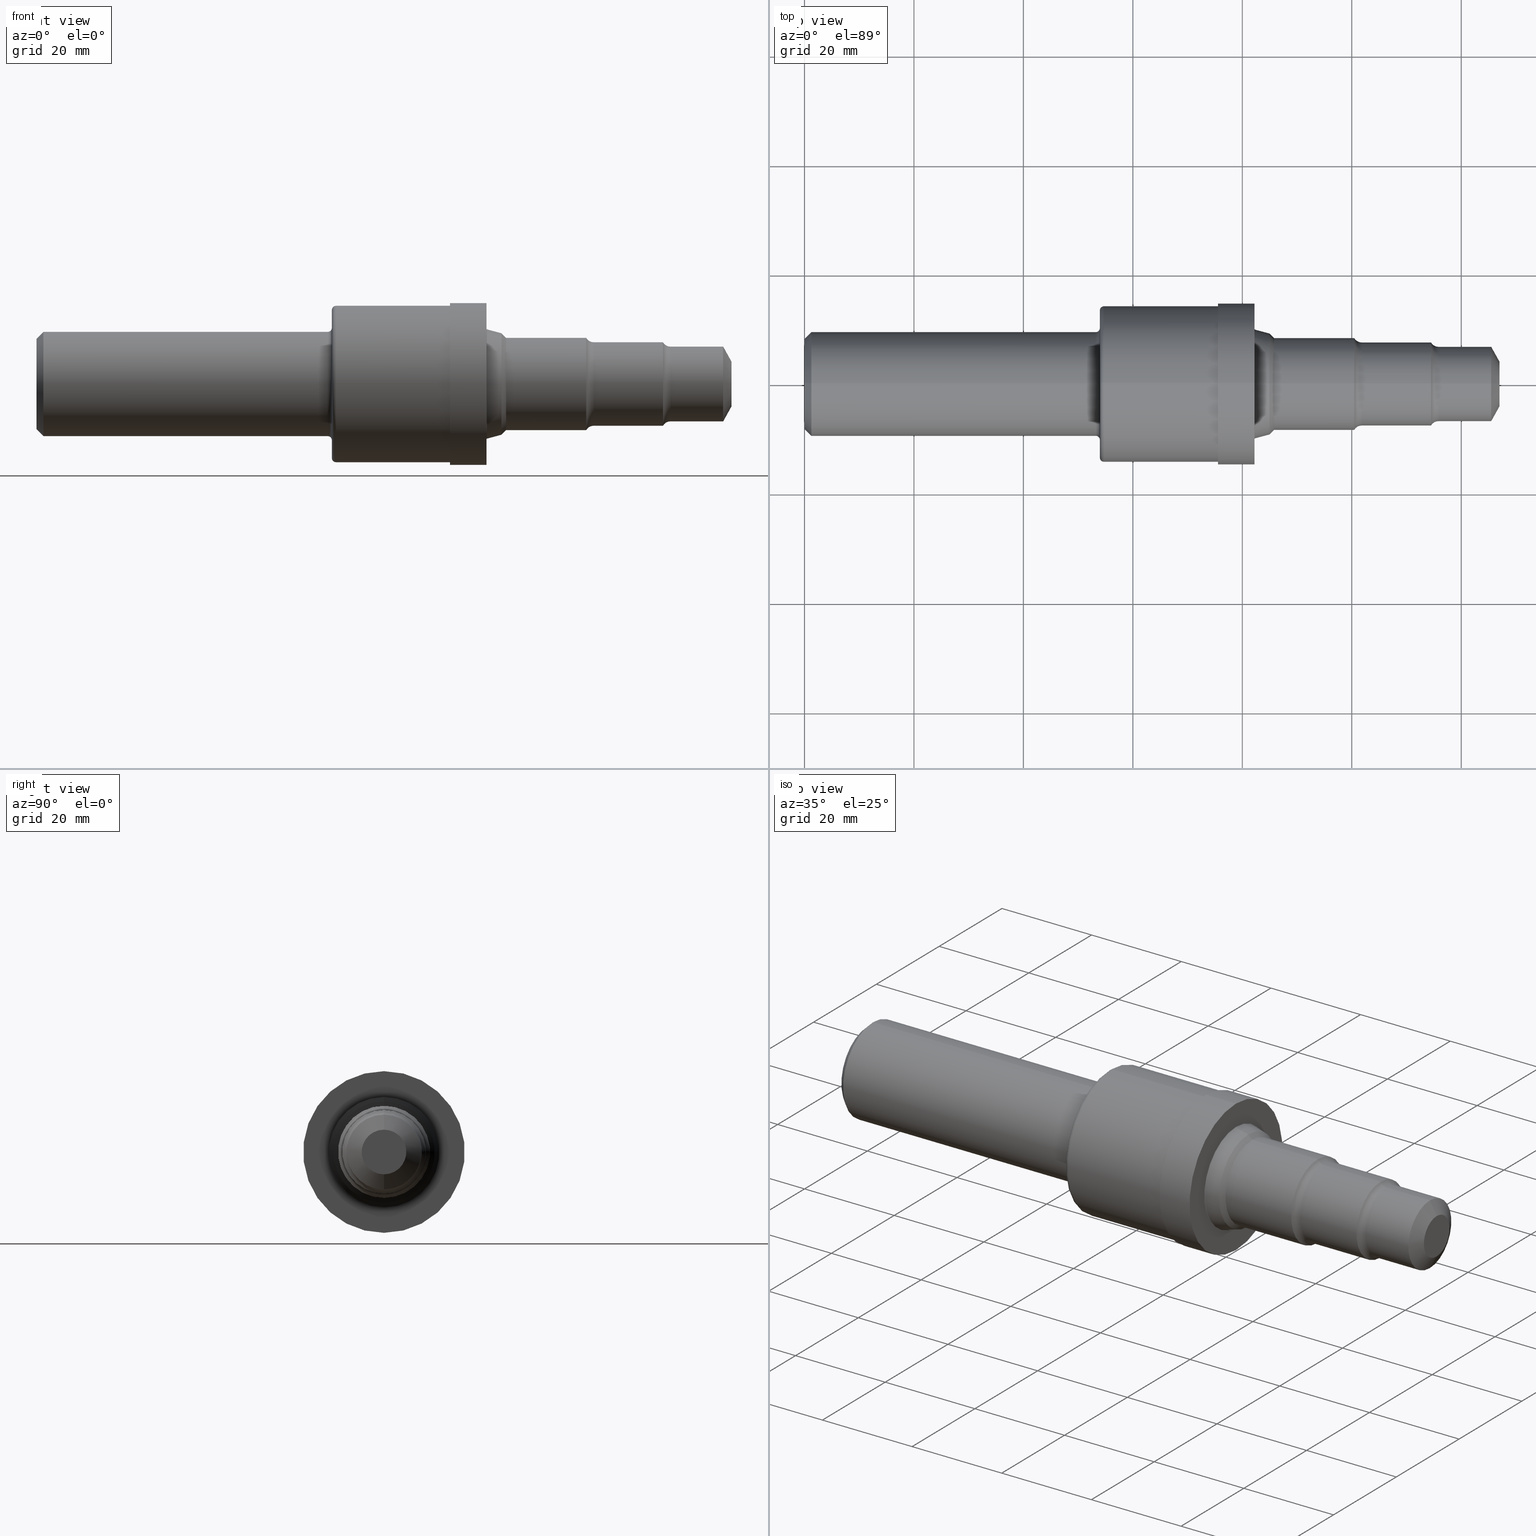
[diagram: canonical four-view strip — front | top / right | iso, engineering-drawing reading convention]
A machine part, canonical four-view strip (front | top / right | iso — engineering-drawing reading convention). The complete STEP part file that produces these views, byte-faithful:
ISO-10303-21;
HEADER;
FILE_DESCRIPTION (( 'STEP AP214' ),
    '1' );
FILE_NAME ('VC08-3-ROUGH-X8.STEP',
    '2019-03-25T21:39:37',
    ( '' ),
    ( '' ),
    'SwSTEP 2.0',
    'SolidWorks 2018',
    '' );
FILE_SCHEMA (( 'AUTOMOTIVE_DESIGN' ));
ENDSEC;

DATA;
#1 = AXIS2_PLACEMENT_3D ( 'NONE', #676, #593, #673 ) ;
#2 = DIRECTION ( 'NONE',  ( -1.000000000000000000, -0.0000000000000000000, -0.0000000000000000000 ) ) ;
#3 = CARTESIAN_POINT ( 'NONE',  ( 3.242188266684283171, 0.0000000000000000000, 0.3926098081318291078 ) ) ;
#4 = ADVANCED_FACE ( 'NONE', ( #304 ), #553, .F. ) ;
#5 = AXIS2_PLACEMENT_3D ( 'NONE', #340, #414, #154 ) ;
#6 = FACE_OUTER_BOUND ( 'NONE', #453, .T. ) ;
#7 = LINE ( 'NONE', #685, #791 ) ;
#8 = ORIENTED_EDGE ( 'NONE', *, *, #60, .T. ) ;
#9 = CARTESIAN_POINT ( 'NONE',  ( 3.955000000000000515, 0.0000000000000000000, 0.0000000000000000000 ) ) ;
#10 = CARTESIAN_POINT ( 'NONE',  ( 0.0000000000000000000, 6.888638245203860712E-17, -0.5624999999999998890 ) ) ;
#11 = DIRECTION ( 'NONE',  ( -1.000000000000000000, -0.0000000000000000000, -0.0000000000000000000 ) ) ;
#12 = CARTESIAN_POINT ( 'NONE',  ( 0.0000000000000000000, 0.0000000000000000000, 0.0000000000000000000 ) ) ;
#13 = VERTEX_POINT ( 'NONE', #295 ) ;
#14 = AXIS2_PLACEMENT_3D ( 'NONE', #263, #726, #196 ) ;
#15 = ORIENTED_EDGE ( 'NONE', *, *, #680, .T. ) ;
#16 = ORIENTED_EDGE ( 'NONE', *, *, #774, .T. ) ;
#17 = DIRECTION ( 'NONE',  ( 0.7071067811865483499, 8.659560562354922997E-17, 0.7071067811865465735 ) ) ;
#18 = EDGE_CURVE ( 'NONE', #230, #688, #405, .T. ) ;
#19 = ORIENTED_EDGE ( 'NONE', *, *, #316, .T. ) ;
#20 = EDGE_LOOP ( 'NONE', ( #927, #860 ) ) ;
#21 = AXIS2_PLACEMENT_3D ( 'NONE', #814, #627, #641 ) ;
#22 = LINE ( 'NONE', #189, #946 ) ;
#23 = AXIS2_PLACEMENT_3D ( 'NONE', #604, #584, #686 ) ;
#24 = DIRECTION ( 'NONE',  ( -1.000000000000000000, -0.0000000000000000000, -0.0000000000000000000 ) ) ;
#25 = ORIENTED_EDGE ( 'NONE', *, *, #118, .F. ) ;
#26 = DIRECTION ( 'NONE',  ( 0.0000000000000000000, 0.0000000000000000000, 1.000000000000000000 ) ) ;
#27 = AXIS2_PLACEMENT_3D ( 'NONE', #873, #888, #194 ) ;
#28 = DIRECTION ( 'NONE',  ( 0.0000000000000000000, 0.0000000000000000000, 1.000000000000000000 ) ) ;
#29 = AXIS2_PLACEMENT_3D ( 'NONE', #72, #277, #550 ) ;
#30 = PRODUCT_DEFINITION_SHAPE ( 'NONE', 'NONE',  #243 ) ;
#31 = PRODUCT_CONTEXT ( 'NONE', #382, 'mechanical' ) ;
#32 = EDGE_LOOP ( 'NONE', ( #943, #518, #126, #130 ) ) ;
#33 =( CONVERSION_BASED_UNIT ( 'INCH', #655 ) LENGTH_UNIT ( ) NAMED_UNIT ( #896 ) );
#34 = DIRECTION ( 'NONE',  ( 1.000000000000000000, 0.0000000000000000000, 0.0000000000000000000 ) ) ;
#35 = ORIENTED_EDGE ( 'NONE', *, *, #938, .F. ) ;
#36 = CIRCLE ( 'NONE', #652, 0.3926098081318291078 ) ;
#37 = FACE_OUTER_BOUND ( 'NONE', #543, .T. ) ;
#38 = CIRCLE ( 'NONE', #392, 0.06200000000000011752 ) ;
#39 = DIRECTION ( 'NONE',  ( -1.000000000000000000, -0.0000000000000000000, -0.0000000000000000000 ) ) ;
#40 = AXIS2_PLACEMENT_3D ( 'NONE', #12, #745, #440 ) ;
#41 = DIRECTION ( 'NONE',  ( -1.000000000000000000, -0.0000000000000000000, -0.0000000000000000000 ) ) ;
#42 = DIRECTION ( 'NONE',  ( 0.0000000000000000000, 0.0000000000000000000, 1.000000000000000000 ) ) ;
#43 = VECTOR ( 'NONE', #129, 39.37007874015748143 ) ;
#44 = ADVANCED_FACE ( 'NONE', ( #578 ), #589, .F. ) ;
#45 = DIRECTION ( 'NONE',  ( 0.0000000000000000000, 0.0000000000000000000, 1.000000000000000000 ) ) ;
#46 = ORIENTED_EDGE ( 'NONE', *, *, #935, .F. ) ;
#47 = DIRECTION ( 'NONE',  ( -1.000000000000000000, -0.0000000000000000000, -0.0000000000000000000 ) ) ;
#48 = AXIS2_PLACEMENT_3D ( 'NONE', #603, #366, #738 ) ;
#49 = CIRCLE ( 'NONE', #79, 0.3748500000000000165 ) ;
#50 = ADVANCED_FACE ( 'NONE', ( #825, #252 ), #691, .F. ) ;
#51 = CARTESIAN_POINT ( 'NONE',  ( 4.008751186033427061, 0.0000000000000000000, 0.0000000000000000000 ) ) ;
#52 = VECTOR ( 'NONE', #656, 39.37007874015748143 ) ;
#53 = VERTEX_POINT ( 'NONE', #219 ) ;
#54 = ADVANCED_FACE ( 'NONE', ( #360 ), #468, .T. ) ;
#55 = CARTESIAN_POINT ( 'NONE',  ( 2.154999999999999805, 0.0000000000000000000, 0.0000000000000000000 ) ) ;
#56 = DIRECTION ( 'NONE',  ( 0.0000000000000000000, 0.0000000000000000000, 1.000000000000000000 ) ) ;
#57 = ADVANCED_FACE ( 'NONE', ( #294 ), #517, .T. ) ;
#58 = PLANE ( 'NONE',  #490 ) ;
#59 = DIRECTION ( 'NONE',  ( 0.0000000000000000000, 0.0000000000000000000, 1.000000000000000000 ) ) ;
#60 = EDGE_CURVE ( 'NONE', #886, #848, #285, .T. ) ;
#61 = CARTESIAN_POINT ( 'NONE',  ( 4.008751186033427061, 4.438120000110009042E-17, -0.3624000000000000554 ) ) ;
#62 = ORIENTED_EDGE ( 'NONE', *, *, #449, .T. ) ;
#63 = EDGE_LOOP ( 'NONE', ( #712, #425, #73, #528 ) ) ;
#64 = ORIENTED_EDGE ( 'NONE', *, *, #698, .F. ) ;
#65 = CARTESIAN_POINT ( 'NONE',  ( 5.000000000000000000, 0.0000000000000000000, 0.1606571346837140923 ) ) ;
#66 = AXIS2_PLACEMENT_3D ( 'NONE', #571, #574, #288 ) ;
#67 = EDGE_LOOP ( 'NONE', ( #610, #84, #534, #257 ) ) ;
#68 = CIRCLE ( 'NONE', #386, 0.5324999999999999734 ) ;
#69 = FACE_OUTER_BOUND ( 'NONE', #93, .T. ) ;
#70 = AXIS2_PLACEMENT_3D ( 'NONE', #55, #365, #758 ) ;
#71 = DIRECTION ( 'NONE',  ( -1.000000000000000000, -0.0000000000000000000, -0.0000000000000000000 ) ) ;
#72 = CARTESIAN_POINT ( 'NONE',  ( 3.244000000000000661, 0.0000000000000000000, 0.0000000000000000000 ) ) ;
#73 = ORIENTED_EDGE ( 'NONE', *, *, #479, .T. ) ;
#74 = AXIS2_PLACEMENT_3D ( 'NONE', #770, #519, #821 ) ;
#75 = EDGE_CURVE ( 'NONE', #275, #766, #731, .T. ) ;
#76 = LINE ( 'NONE', #904, #622 ) ;
#77 = DIRECTION ( 'NONE',  ( -1.000000000000000000, -0.0000000000000000000, -0.0000000000000000000 ) ) ;
#78 = CIRCLE ( 'NONE', #111, 0.3748500000000005161 ) ;
#79 = AXIS2_PLACEMENT_3D ( 'NONE', #910, #527, #854 ) ;
#80 = VERTEX_POINT ( 'NONE', #884 ) ;
#81 = CARTESIAN_POINT ( 'NONE',  ( 0.0000000000000000000, 0.0000000000000000000, 0.0000000000000000000 ) ) ;
#82 = CARTESIAN_POINT ( 'NONE',  ( 3.237000000000000544, 0.0000000000000000000, 0.0000000000000000000 ) ) ;
#83 = AXIS2_PLACEMENT_3D ( 'NONE', #839, #616, #945 ) ;
#84 = ORIENTED_EDGE ( 'NONE', *, *, #412, .T. ) ;
#85 = CIRCLE ( 'NONE', #74, 0.1606571346837140923 ) ;
#86 = CIRCLE ( 'NONE', #515, 0.5625000000000000000 ) ;
#87 = DIRECTION ( 'NONE',  ( -1.000000000000000000, -0.0000000000000000000, -0.0000000000000000000 ) ) ;
#88 = CARTESIAN_POINT ( 'NONE',  ( 2.975000000000000533, 0.0000000000000000000, 0.0000000000000000000 ) ) ;
#89 = DIRECTION ( 'NONE',  ( -1.000000000000000000, -0.0000000000000000000, -0.0000000000000000000 ) ) ;
#90 = AXIS2_PLACEMENT_3D ( 'NONE', #238, #77, #930 ) ;
#91 = DIRECTION ( 'NONE',  ( 0.0000000000000000000, 0.0000000000000000000, 1.000000000000000000 ) ) ;
#92 = ORIENTED_EDGE ( 'NONE', *, *, #909, .T. ) ;
#93 = EDGE_LOOP ( 'NONE', ( #8, #734, #942, #898 ) ) ;
#94 = SURFACE_STYLE_USAGE ( .BOTH. , #301 ) ;
#95 = CARTESIAN_POINT ( 'NONE',  ( 0.0000000000000000000, 0.0000000000000000000, 0.0000000000000000000 ) ) ;
#96 = EDGE_LOOP ( 'NONE', ( #108, #415, #441, #531 ) ) ;
#97 = CARTESIAN_POINT ( 'NONE',  ( 5.000000000000000000, 1.967482457505957034E-17, -0.1606571346837140923 ) ) ;
#98 = CARTESIAN_POINT ( 'NONE',  ( 2.125000000000000000, 0.5324999999999999734, 0.0000000000000000000 ) ) ;
#99 = AXIS2_PLACEMENT_3D ( 'NONE', #646, #720, #56 ) ;
#100 = LINE ( 'NONE', #10, #855 ) ;
#101 = VERTEX_POINT ( 'NONE', #371 ) ;
#102 = DIRECTION ( 'NONE',  ( -1.000000000000000000, -0.0000000000000000000, -0.0000000000000000000 ) ) ;
#103 = EDGE_LOOP ( 'NONE', ( #308, #867, #136, #554 ) ) ;
#104 = CARTESIAN_POINT ( 'NONE',  ( 2.975000000000000533, 7.121321137041857306E-17, -0.5814999999999999059 ) ) ;
#105 = ORIENTED_EDGE ( 'NONE', *, *, #166, .T. ) ;
#106 = EDGE_CURVE ( 'NONE', #772, #429, #38, .T. ) ;
#107 = FACE_OUTER_BOUND ( 'NONE', #739, .T. ) ;
#108 = ORIENTED_EDGE ( 'NONE', *, *, #664, .F. ) ;
#109 = CARTESIAN_POINT ( 'NONE',  ( 3.378561487217439208, 0.0000000000000000000, 0.0000000000000000000 ) ) ;
#110 = LINE ( 'NONE', #767, #420 ) ;
#111 = AXIS2_PLACEMENT_3D ( 'NONE', #570, #718, #665 ) ;
#112 = CYLINDRICAL_SURFACE ( 'NONE', #182, 0.3003999999999999448 ) ;
#113 = DIRECTION ( 'NONE',  ( 0.0000000000000000000, 0.0000000000000000000, -1.000000000000000000 ) ) ;
#114 = ORIENTED_EDGE ( 'NONE', *, *, #558, .T. ) ;
#115 = CARTESIAN_POINT ( 'NONE',  ( 2.975000000000000533, 0.0000000000000000000, 0.0000000000000000000 ) ) ;
#116 = CIRCLE ( 'NONE', #66, 0.3650614872174387515 ) ;
#117 = CARTESIAN_POINT ( 'NONE',  ( 0.0000000000000000000, 0.0000000000000000000, 0.0000000000000000000 ) ) ;
#118 = EDGE_CURVE ( 'NONE', #606, #169, #563, .T. ) ;
#119 = DIRECTION ( 'NONE',  ( 0.0000000000000000000, 0.0000000000000000000, 1.000000000000000000 ) ) ;
#120 = DIRECTION ( 'NONE',  ( 1.000000000000000000, 0.0000000000000000000, 0.0000000000000000000 ) ) ;
#121 = ORIENTED_EDGE ( 'NONE', *, *, #645, .T. ) ;
#122 = DIRECTION ( 'NONE',  ( 0.0000000000000000000, 0.0000000000000000000, 1.000000000000000000 ) ) ;
#123 = DIRECTION ( 'NONE',  ( -0.4848096202463349491, 1.071100224819457965E-16, -0.8746197071393968514 ) ) ;
#124 = CARTESIAN_POINT ( 'NONE',  ( 0.0000000000000000000, 0.0000000000000000000, 0.0000000000000000000 ) ) ;
#125 = DIRECTION ( 'NONE',  ( -1.000000000000000000, 0.0000000000000000000, -0.0000000000000000000 ) ) ;
#126 = ORIENTED_EDGE ( 'NONE', *, *, #722, .T. ) ;
#127 = CARTESIAN_POINT ( 'NONE',  ( 2.154999999999999805, 6.521244205459655563E-17, -0.5324999999999999734 ) ) ;
#128 = DIRECTION ( 'NONE',  ( -1.000000000000000000, -0.0000000000000000000, -0.0000000000000000000 ) ) ;
#129 = DIRECTION ( 'NONE',  ( -0.9659258262890684232, 0.0000000000000000000, 0.2588190451025202399 ) ) ;
#130 = ORIENTED_EDGE ( 'NONE', *, *, #924, .F. ) ;
#131 = CARTESIAN_POINT ( 'NONE',  ( 3.242188266684283171, 0.0000000000000000000, 0.0000000000000000000 ) ) ;
#132 = VECTOR ( 'NONE', #626, 39.37007874015748143 ) ;
#133 = FACE_OUTER_BOUND ( 'NONE', #322, .T. ) ;
#134 = CARTESIAN_POINT ( 'NONE',  ( 3.378561487217439208, 4.059704139173475521E-17, -0.3314999999999999059 ) ) ;
#135 = CARTESIAN_POINT ( 'NONE',  ( 2.975000000000000533, 0.5625000000000000000, 0.0000000000000000000 ) ) ;
#136 = ORIENTED_EDGE ( 'NONE', *, *, #674, .F. ) ;
#137 =( CONVERSION_BASED_UNIT ( 'INCH', #481 ) LENGTH_UNIT ( ) NAMED_UNIT ( #816 ) );
#138 = VERTEX_POINT ( 'NONE', #375 ) ;
#139 = LINE ( 'NONE', #599, #696 ) ;
#140 = DIRECTION ( 'NONE',  ( 0.0000000000000000000, 0.0000000000000000000, 1.000000000000000000 ) ) ;
#141 = CIRCLE ( 'NONE', #372, 0.2689000000000003610 ) ;
#142 = AXIS2_PLACEMENT_3D ( 'NONE', #199, #723, #59 ) ;
#143 = VERTEX_POINT ( 'NONE', #721 ) ;
#144 = ORIENTED_EDGE ( 'NONE', *, *, #242, .F. ) ;
#145 = ORIENTED_EDGE ( 'NONE', *, *, #765, .T. ) ;
#146 = ADVANCED_FACE ( 'NONE', ( #325 ), #736, .T. ) ;
#147 = VERTEX_POINT ( 'NONE', #264 ) ;
#148 = EDGE_CURVE ( 'NONE', #376, #495, #498, .T. ) ;
#149 = CARTESIAN_POINT ( 'NONE',  ( 2.094999999999999751, 0.0000000000000000000, 0.0000000000000000000 ) ) ;
#150 = DIRECTION ( 'NONE',  ( 0.0000000000000000000, 0.0000000000000000000, 1.000000000000000000 ) ) ;
#151 = DIRECTION ( 'NONE',  ( 0.0000000000000000000, 0.0000000000000000000, 1.000000000000000000 ) ) ;
#152 = AXIS2_PLACEMENT_3D ( 'NONE', #850, #746, #269 ) ;
#153 = DIRECTION ( 'NONE',  ( 0.0000000000000000000, 0.0000000000000000000, 1.000000000000000000 ) ) ;
#154 = DIRECTION ( 'NONE',  ( 0.0000000000000000000, 0.0000000000000000000, 1.000000000000000000 ) ) ;
#155 =( LENGTH_UNIT ( ) NAMED_UNIT ( * ) SI_UNIT ( $, .METRE. ) );
#156 = DIRECTION ( 'NONE',  ( 0.0000000000000000000, 0.0000000000000000000, 1.000000000000000000 ) ) ;
#157 = FACE_OUTER_BOUND ( 'NONE', #699, .T. ) ;
#158 = DIRECTION ( 'NONE',  ( 0.0000000000000000000, 0.0000000000000000000, 1.000000000000000000 ) ) ;
#159 = DIRECTION ( 'NONE',  ( 0.0000000000000000000, 0.0000000000000000000, 1.000000000000000000 ) ) ;
#160 = ADVANCED_FACE ( 'NONE', ( #133 ), #761, .T. ) ;
#161 = TOROIDAL_SURFACE ( 'NONE', #452, 0.4048500000000005428, 0.02999999999999998848 ) ;
#162 = FILL_AREA_STYLE_COLOUR ( '', #742 ) ;
#163 = DIRECTION ( 'NONE',  ( 0.0000000000000000000, 0.0000000000000000000, 1.000000000000000000 ) ) ;
#164 = EDGE_LOOP ( 'NONE', ( #841, #246, #631, #911 ) ) ;
#165 = ADVANCED_FACE ( 'NONE', ( #408 ), #573, .T. ) ;
#166 = EDGE_CURVE ( 'NONE', #766, #275, #856, .T. ) ;
#167 = ORIENTED_EDGE ( 'NONE', *, *, #305, .F. ) ;
#168 = CARTESIAN_POINT ( 'NONE',  ( 0.0000000000000000000, 0.0000000000000000000, 0.3003999999999999448 ) ) ;
#169 = VERTEX_POINT ( 'NONE', #191 ) ;
#170 = DIRECTION ( 'NONE',  ( 0.0000000000000000000, 0.0000000000000000000, 1.000000000000000000 ) ) ;
#171 = DIRECTION ( 'NONE',  ( 0.0000000000000000000, 0.0000000000000000000, 1.000000000000000000 ) ) ;
#172 = AXIS2_PLACEMENT_3D ( 'NONE', #95, #229, #374 ) ;
#173 = CIRCLE ( 'NONE', #409, 0.2688999999999999724 ) ;
#174 = DIRECTION ( 'NONE',  ( 0.0000000000000000000, 0.0000000000000000000, 1.000000000000000000 ) ) ;
#175 = ADVANCED_FACE ( 'NONE', ( #345 ), #784, .F. ) ;
#176 = CARTESIAN_POINT ( 'NONE',  ( 2.094999999999999751, 4.957982566348065676E-17, -0.4048500000000005428 ) ) ;
#177 = AXIS2_PLACEMENT_3D ( 'NONE', #214, #283, #180 ) ;
#178 = DIRECTION ( 'NONE',  ( 1.000000000000000000, 0.0000000000000000000, 0.0000000000000000000 ) ) ;
#179 = ORIENTED_EDGE ( 'NONE', *, *, #454, .T. ) ;
#180 = DIRECTION ( 'NONE',  ( 0.0000000000000000000, 0.0000000000000000000, 1.000000000000000000 ) ) ;
#181 = CONICAL_SURFACE ( 'NONE', #668, 0.3748500000000000165, 0.7853981633974470578 ) ;
#182 = AXIS2_PLACEMENT_3D ( 'NONE', #297, #362, #470 ) ;
#183 = CARTESIAN_POINT ( 'NONE',  ( 2.125000000000000000, 0.0000000000000000000, 0.0000000000000000000 ) ) ;
#184 = ADVANCED_FACE ( 'NONE', ( #748, #547 ), #654, .F. ) ;
#185 = CONICAL_SURFACE ( 'NONE', #341, 0.1606571346837140923, 1.064650843716543394 ) ;
#186 = AXIS2_PLACEMENT_3D ( 'NONE', #473, #638, #140 ) ;
#187 = ORIENTED_EDGE ( 'NONE', *, *, #454, .F. ) ;
#188 = APPLICATION_CONTEXT ( 'automotive_design' ) ;
#189 = CARTESIAN_POINT ( 'NONE',  ( 3.345000000000000639, 4.470713818128087531E-17, -0.3650614872174387515 ) ) ;
#190 = FACE_OUTER_BOUND ( 'NONE', #556, .T. ) ;
#191 = CARTESIAN_POINT ( 'NONE',  ( 0.05000000000000000278, 0.0000000000000000000, -0.3748500000000000165 ) ) ;
#192 = EDGE_CURVE ( 'NONE', #413, #474, #847, .T. ) ;
#193 = DIRECTION ( 'NONE',  ( 0.0000000000000000000, 0.0000000000000000000, 1.000000000000000000 ) ) ;
#194 = DIRECTION ( 'NONE',  ( 0.0000000000000000000, 0.0000000000000000000, -1.000000000000000000 ) ) ;
#195 = PRESENTATION_STYLE_ASSIGNMENT (( #94 ) ) ;
#196 = DIRECTION ( 'NONE',  ( 0.0000000000000000000, 0.0000000000000000000, 1.000000000000000000 ) ) ;
#197 = AXIS2_PLACEMENT_3D ( 'NONE', #916, #102, #438 ) ;
#198 = VERTEX_POINT ( 'NONE', #399 ) ;
#199 = CARTESIAN_POINT ( 'NONE',  ( 2.154999999999999805, 0.0000000000000000000, 0.0000000000000000000 ) ) ;
#200 = EDGE_LOOP ( 'NONE', ( #428, #217 ) ) ;
#201 = CYLINDRICAL_SURFACE ( 'NONE', #471, 0.3748500000000002386 ) ;
#202 = CYLINDRICAL_SURFACE ( 'NONE', #435, 0.5814999999999999059 ) ;
#203 = VECTOR ( 'NONE', #422, 39.37007874015748143 ) ;
#204 = ORIENTED_EDGE ( 'NONE', *, *, #924, .T. ) ;
#205 = DIRECTION ( 'NONE',  ( 0.0000000000000000000, 0.0000000000000000000, -1.000000000000000000 ) ) ;
#206 = ORIENTED_EDGE ( 'NONE', *, *, #254, .F. ) ;
#207 = VERTEX_POINT ( 'NONE', #869 ) ;
#208 = ADVANCED_FACE ( 'NONE', ( #107 ), #913, .F. ) ;
#209 = ORIENTED_EDGE ( 'NONE', *, *, #566, .T. ) ;
#210 = ORIENTED_EDGE ( 'NONE', *, *, #806, .T. ) ;
#211 = EDGE_CURVE ( 'NONE', #53, #13, #659, .T. ) ;
#212 = CYLINDRICAL_SURFACE ( 'NONE', #540, 0.2689000000000001944 ) ;
#213 = VERTEX_POINT ( 'NONE', #683 ) ;
#214 = CARTESIAN_POINT ( 'NONE',  ( 0.0000000000000000000, 0.0000000000000000000, 0.0000000000000000000 ) ) ;
#215 = AXIS2_PLACEMENT_3D ( 'NONE', #689, #11, #156 ) ;
#216 = EDGE_LOOP ( 'NONE', ( #387, #179 ) ) ;
#217 = ORIENTED_EDGE ( 'NONE', *, *, #384, .F. ) ;
#218 = DIRECTION ( 'NONE',  ( -1.000000000000000000, -0.0000000000000000000, -0.0000000000000000000 ) ) ;
#219 = CARTESIAN_POINT ( 'NONE',  ( 3.237000000000000544, 0.0000000000000000000, 0.5815000000000000169 ) ) ;
#220 = AXIS2_PLACEMENT_3D ( 'NONE', #82, #89, #151 ) ;
#221 = DIRECTION ( 'NONE',  ( -1.000000000000000000, -0.0000000000000000000, -0.0000000000000000000 ) ) ;
#222 = FACE_OUTER_BOUND ( 'NONE', #657, .T. ) ;
#223 = EDGE_LOOP ( 'NONE', ( #875, #401, #486, #785 ) ) ;
#224 = CYLINDRICAL_SURFACE ( 'NONE', #172, 0.3003999999999999448 ) ;
#225 =( NAMED_UNIT ( * ) SI_UNIT ( $, .STERADIAN. ) SOLID_ANGLE_UNIT ( ) );
#226 = DIRECTION ( 'NONE',  ( -1.000000000000000000, -0.0000000000000000000, -0.0000000000000000000 ) ) ;
#227 = AXIS2_PLACEMENT_3D ( 'NONE', #291, #756, #504 ) ;
#228 = CARTESIAN_POINT ( 'NONE',  ( 3.345000000000000639, 0.0000000000000000000, 0.3650614872174387515 ) ) ;
#229 = DIRECTION ( 'NONE',  ( -1.000000000000000000, -0.0000000000000000000, -0.0000000000000000000 ) ) ;
#230 = VERTEX_POINT ( 'NONE', #256 ) ;
#231 = CARTESIAN_POINT ( 'NONE',  ( 4.560979162646339624, 0.0000000000000000000, 0.0000000000000000000 ) ) ;
#232 = DIRECTION ( 'NONE',  ( -1.000000000000000000, -0.0000000000000000000, -0.0000000000000000000 ) ) ;
#233 = ORIENTED_EDGE ( 'NONE', *, *, #242, .T. ) ;
#234 = EDGE_CURVE ( 'NONE', #772, #275, #76, .T. ) ;
#235 = CIRCLE ( 'NONE', #363, 0.3926098081318291078 ) ;
#236 = DIRECTION ( 'NONE',  ( -1.000000000000000000, -0.0000000000000000000, -0.0000000000000000000 ) ) ;
#237 = EDGE_LOOP ( 'NONE', ( #832, #670, #15, #343 ) ) ;
#238 = CARTESIAN_POINT ( 'NONE',  ( 4.507000000000000561, 0.0000000000000000000, 0.0000000000000000000 ) ) ;
#239 = DIRECTION ( 'NONE',  ( 0.0000000000000000000, 0.0000000000000000000, -1.000000000000000000 ) ) ;
#240 = ORIENTED_EDGE ( 'NONE', *, *, #192, .F. ) ;
#241 = DIRECTION ( 'NONE',  ( -1.000000000000000000, -0.0000000000000000000, -0.0000000000000000000 ) ) ;
#242 = EDGE_CURVE ( 'NONE', #169, #276, #49, .T. ) ;
#243 = PRODUCT_DEFINITION ( 'UNKNOWN', '', #934, #797 ) ;
#244 = ORIENTED_EDGE ( 'NONE', *, *, #106, .F. ) ;
#245 = CARTESIAN_POINT ( 'NONE',  ( 3.345000000000000639, 4.639398633276549041E-17, -0.3650614872174387515 ) ) ;
#246 = ORIENTED_EDGE ( 'NONE', *, *, #759, .T. ) ;
#247 = CARTESIAN_POINT ( 'NONE',  ( 0.0000000000000000000, 0.0000000000000000000, 0.3314999999999999059 ) ) ;
#248 = ORIENTED_EDGE ( 'NONE', *, *, #733, .T. ) ;
#249 =( LENGTH_UNIT ( ) NAMED_UNIT ( * ) SI_UNIT ( $, .METRE. ) );
#250 = TOROIDAL_SURFACE ( 'NONE', #70, 0.5324999999999999734, 0.02999999999999998848 ) ;
#251 = CONICAL_SURFACE ( 'NONE', #885, 0.3748500000000000165, 0.7853981633974470578 ) ;
#252 = FACE_OUTER_BOUND ( 'NONE', #216, .T. ) ;
#253 = CARTESIAN_POINT ( 'NONE',  ( 4.008751186033426173, 0.0000000000000000000, 0.3003999999999999448 ) ) ;
#254 = EDGE_CURVE ( 'NONE', #276, #169, #289, .T. ) ;
#255 = MANIFOLD_SOLID_BREP ( 'B89A301B-9BAB-48c6-9752-02F2821A1289-GAAFaceID18', #833 ) ;
#256 = CARTESIAN_POINT ( 'NONE',  ( 3.237000000000000544, 0.0000000000000000000, 0.3993712889158527179 ) ) ;
#257 = ORIENTED_EDGE ( 'NONE', *, *, #558, .F. ) ;
#258 = VECTOR ( 'NONE', #587, 39.37007874015748143 ) ;
#259 = EDGE_CURVE ( 'NONE', #851, #276, #693, .T. ) ;
#260 = CARTESIAN_POINT ( 'NONE',  ( 3.378561487217439208, 4.265208978650781218E-17, -0.3314999999999999059 ) ) ;
#261 = CARTESIAN_POINT ( 'NONE',  ( 0.0000000000000000000, 4.284426826817016124E-17, 0.3248500000000001386 ) ) ;
#262 = ORIENTED_EDGE ( 'NONE', *, *, #733, .F. ) ;
#263 = CARTESIAN_POINT ( 'NONE',  ( 0.0000000000000000000, 0.0000000000000000000, 0.0000000000000000000 ) ) ;
#264 = CARTESIAN_POINT ( 'NONE',  ( 2.154999999999999805, 6.888638245203860712E-17, -0.5624999999999998890 ) ) ;
#265 = AXIS2_PLACEMENT_3D ( 'NONE', #117, #47, #42 ) ;
#266 =( NAMED_UNIT ( * ) SI_UNIT ( $, .STERADIAN. ) SOLID_ANGLE_UNIT ( ) );
#267 = DIRECTION ( 'NONE',  ( -1.000000000000000000, -0.0000000000000000000, -0.0000000000000000000 ) ) ;
#268 = DIRECTION ( 'NONE',  ( -1.000000000000000000, -0.0000000000000000000, -0.0000000000000000000 ) ) ;
#269 = DIRECTION ( 'NONE',  ( 0.0000000000000000000, 0.0000000000000000000, 1.000000000000000000 ) ) ;
#270 = VERTEX_POINT ( 'NONE', #901 ) ;
#271 = AXIS2_PLACEMENT_3D ( 'NONE', #406, #442, #936 ) ;
#272 = CIRCLE ( 'NONE', #871, 0.007000000000000157138 ) ;
#273 = ORIENTED_EDGE ( 'NONE', *, *, #254, .T. ) ;
#274 = FACE_OUTER_BOUND ( 'NONE', #920, .T. ) ;
#275 = VERTEX_POINT ( 'NONE', #260 ) ;
#276 = VERTEX_POINT ( 'NONE', #694 ) ;
#277 = DIRECTION ( 'NONE',  ( -1.000000000000000000, -0.0000000000000000000, -0.0000000000000000000 ) ) ;
#278 = ORIENTED_EDGE ( 'NONE', *, *, #118, .T. ) ;
#279 = DIRECTION ( 'NONE',  ( 0.0000000000000000000, 0.0000000000000000000, 1.000000000000000000 ) ) ;
#280 = ORIENTED_EDGE ( 'NONE', *, *, #740, .F. ) ;
#281 = AXIS2_PLACEMENT_3D ( 'NONE', #944, #268, #949 ) ;
#282 = ORIENTED_EDGE ( 'NONE', *, *, #75, .F. ) ;
#283 = DIRECTION ( 'NONE',  ( -1.000000000000000000, -0.0000000000000000000, -0.0000000000000000000 ) ) ;
#284 = CIRCLE ( 'NONE', #281, 0.5815000000000000169 ) ;
#285 = CIRCLE ( 'NONE', #227, 0.3004000000000000004 ) ;
#286 = EDGE_CURVE ( 'NONE', #667, #462, #889, .T. ) ;
#287 = ADVANCED_FACE ( 'NONE', ( #292 ), #837, .T. ) ;
#288 = DIRECTION ( 'NONE',  ( 0.0000000000000000000, 0.0000000000000000000, 1.000000000000000000 ) ) ;
#289 = CIRCLE ( 'NONE', #735, 0.3748500000000000165 ) ;
#290 = EDGE_CURVE ( 'NONE', #213, #443, #85, .T. ) ;
#291 = CARTESIAN_POINT ( 'NONE',  ( 4.507000000000000561, 0.0000000000000000000, 0.0000000000000000000 ) ) ;
#292 = FACE_OUTER_BOUND ( 'NONE', #356, .T. ) ;
#293 = FACE_OUTER_BOUND ( 'NONE', #887, .T. ) ;
#294 = FACE_OUTER_BOUND ( 'NONE', #164, .T. ) ;
#295 = CARTESIAN_POINT ( 'NONE',  ( 3.237000000000000544, 7.121321137041858539E-17, -0.5815000000000000169 ) ) ;
#296 = DIRECTION ( 'NONE',  ( 0.0000000000000000000, 0.0000000000000000000, 1.000000000000000000 ) ) ;
#297 = CARTESIAN_POINT ( 'NONE',  ( 0.0000000000000000000, 0.0000000000000000000, 0.0000000000000000000 ) ) ;
#298 = CARTESIAN_POINT ( 'NONE',  ( 4.008751186033426173, 3.869271561906062087E-17, -0.3003999999999999448 ) ) ;
#299 = DIRECTION ( 'NONE',  ( -1.000000000000000000, -0.0000000000000000000, -0.0000000000000000000 ) ) ;
#300 = EDGE_CURVE ( 'NONE', #138, #207, #669, .T. ) ;
#301 = SURFACE_SIDE_STYLE ('',( #541 ) ) ;
#302 = ADVANCED_FACE ( 'NONE', ( #865 ), #434, .T. ) ;
#303 = FACE_BOUND ( 'NONE', #466, .T. ) ;
#304 = FACE_OUTER_BOUND ( 'NONE', #67, .T. ) ;
#305 = EDGE_CURVE ( 'NONE', #688, #230, #647, .T. ) ;
#306 = DIRECTION ( 'NONE',  ( 0.0000000000000000000, 0.0000000000000000000, 1.000000000000000000 ) ) ;
#307 = SURFACE_SIDE_STYLE ('',( #505 ) ) ;
#308 = ORIENTED_EDGE ( 'NONE', *, *, #211, .T. ) ;
#309 = DIRECTION ( 'NONE',  ( -1.000000000000000000, -0.0000000000000000000, -0.0000000000000000000 ) ) ;
#310 = ORIENTED_EDGE ( 'NONE', *, *, #18, .F. ) ;
#311 = ORIENTED_EDGE ( 'NONE', *, *, #460, .F. ) ;
#312 = AXIS2_PLACEMENT_3D ( 'NONE', #331, #309, #707 ) ;
#313 = CONICAL_SURFACE ( 'NONE', #326, 0.3314999999999999059, 0.7853981633974492782 ) ;
#314 = DIRECTION ( 'NONE',  ( -1.000000000000000000, -0.0000000000000000000, -0.0000000000000000000 ) ) ;
#315 = FACE_OUTER_BOUND ( 'NONE', #103, .T. ) ;
#316 = EDGE_CURVE ( 'NONE', #230, #474, #272, .T. ) ;
#317 = CARTESIAN_POINT ( 'NONE',  ( 2.094999999999999751, 0.0000000000000000000, 0.4048500000000005428 ) ) ;
#318 = AXIS2_PLACEMENT_3D ( 'NONE', #124, #512, #119 ) ;
#319 = FACE_OUTER_BOUND ( 'NONE', #511, .T. ) ;
#320 = DIRECTION ( 'NONE',  ( 0.0000000000000000000, 0.0000000000000000000, 1.000000000000000000 ) ) ;
#321 = CARTESIAN_POINT ( 'NONE',  ( 0.0000000000000000000, 0.0000000000000000000, 0.5814999999999999059 ) ) ;
#322 = EDGE_LOOP ( 'NONE', ( #737, #677, #615, #282 ) ) ;
#323 = VECTOR ( 'NONE', #381, 39.37007874015748143 ) ;
#324 = DIRECTION ( 'NONE',  ( -1.000000000000000000, -0.0000000000000000000, -0.0000000000000000000 ) ) ;
#325 = FACE_OUTER_BOUND ( 'NONE', #96, .T. ) ;
#326 = AXIS2_PLACEMENT_3D ( 'NONE', #937, #929, #26 ) ;
#327 = DIRECTION ( 'NONE',  ( -1.000000000000000000, -0.0000000000000000000, -0.0000000000000000000 ) ) ;
#328 = DIRECTION ( 'NONE',  ( -1.000000000000000000, -0.0000000000000000000, -0.0000000000000000000 ) ) ;
#329 = AXIS2_PLACEMENT_3D ( 'NONE', #651, #407, #122 ) ;
#330 = EDGE_LOOP ( 'NONE', ( #353, #560, #114, #586 ) ) ;
#331 = CARTESIAN_POINT ( 'NONE',  ( 0.0000000000000000000, 0.0000000000000000000, 0.0000000000000000000 ) ) ;
#332 = CARTESIAN_POINT ( 'NONE',  ( 5.000000000000000000, 0.1606571346837140923, 0.0000000000000000000 ) ) ;
#333 = ORIENTED_EDGE ( 'NONE', *, *, #787, .T. ) ;
#334 = ADVANCED_FACE ( 'NONE', ( #458 ), #250, .T. ) ;
#335 = ADVANCED_FACE ( 'NONE', ( #624 ), #790, .T. ) ;
#336 = DIRECTION ( 'NONE',  ( -1.000000000000000000, -0.0000000000000000000, -0.0000000000000000000 ) ) ;
#337 = SHAPE_DEFINITION_REPRESENTATION ( #30, #843 ) ;
#338 = EDGE_CURVE ( 'NONE', #474, #743, #36, .T. ) ;
#339 =( GEOMETRIC_REPRESENTATION_CONTEXT ( 3 ) GLOBAL_UNCERTAINTY_ASSIGNED_CONTEXT ( ( #798 ) ) GLOBAL_UNIT_ASSIGNED_CONTEXT ( ( #137, #829, #493 ) ) REPRESENTATION_CONTEXT ( 'NONE', 'WORKASPACE' ) );
#340 = CARTESIAN_POINT ( 'NONE',  ( 2.125000000000000000, 0.0000000000000000000, 0.0000000000000000000 ) ) ;
#341 = AXIS2_PLACEMENT_3D ( 'NONE', #813, #395, #159 ) ;
#342 = ORIENTED_EDGE ( 'NONE', *, *, #759, .F. ) ;
#343 = ORIENTED_EDGE ( 'NONE', *, *, #909, .F. ) ;
#344 = DIRECTION ( 'NONE',  ( 0.0000000000000000000, 0.0000000000000000000, 1.000000000000000000 ) ) ;
#345 = FACE_OUTER_BOUND ( 'NONE', #200, .T. ) ;
#346 = AXIS2_PLACEMENT_3D ( 'NONE', #88, #507, #905 ) ;
#347 = CIRCLE ( 'NONE', #690, 0.2689000000000003610 ) ;
#348 = CIRCLE ( 'NONE', #704, 0.3314999999999999059 ) ;
#349 = ORIENTED_EDGE ( 'NONE', *, *, #338, .F. ) ;
#350 = CARTESIAN_POINT ( 'NONE',  ( 0.0000000000000000000, 0.0000000000000000000, 0.0000000000000000000 ) ) ;
#351 = UNCERTAINTY_MEASURE_WITH_UNIT (LENGTH_MEASURE( 1.000000000000000082E-05 ), #836, 'distance_accuracy_value', 'NONE');
#352 = CARTESIAN_POINT ( 'NONE',  ( 0.0000000000000000000, 4.590588526603856213E-17, -0.3748500000000002386 ) ) ;
#353 = ORIENTED_EDGE ( 'NONE', *, *, #412, .F. ) ;
#354 = EDGE_CURVE ( 'NONE', #848, #429, #110, .T. ) ;
#355 = ADVANCED_FACE ( 'NONE', ( #598 ), #201, .T. ) ;
#356 = EDGE_LOOP ( 'NONE', ( #105, #894, #451, #853 ) ) ;
#357 = AXIS2_PLACEMENT_3D ( 'NONE', #183, #314, #279 ) ;
#358 = CIRCLE ( 'NONE', #27, 0.06199999999999956934 ) ;
#359 = AXIS2_PLACEMENT_3D ( 'NONE', #499, #782, #786 ) ;
#360 = FACE_OUTER_BOUND ( 'NONE', #506, .T. ) ;
#361 = EDGE_CURVE ( 'NONE', #462, #667, #389, .T. ) ;
#362 = DIRECTION ( 'NONE',  ( -1.000000000000000000, -0.0000000000000000000, -0.0000000000000000000 ) ) ;
#363 = AXIS2_PLACEMENT_3D ( 'NONE', #131, #424, #306 ) ;
#364 = ORIENTED_EDGE ( 'NONE', *, *, #361, .T. ) ;
#365 = DIRECTION ( 'NONE',  ( -1.000000000000000000, -0.0000000000000000000, -0.0000000000000000000 ) ) ;
#366 = DIRECTION ( 'NONE',  ( -1.000000000000000000, -0.0000000000000000000, -0.0000000000000000000 ) ) ;
#367 = ORIENTED_EDGE ( 'NONE', *, *, #645, .F. ) ;
#368 = CIRCLE ( 'NONE', #764, 0.1606571346837140923 ) ;
#369 = LINE ( 'NONE', #783, #771 ) ;
#370 = CARTESIAN_POINT ( 'NONE',  ( 4.560979162646339624, 0.0000000000000000000, 0.0000000000000000000 ) ) ;
#371 = CARTESIAN_POINT ( 'NONE',  ( 4.560979162646339624, 0.0000000000000000000, 0.2689000000000003610 ) ) ;
#372 = AXIS2_PLACEMENT_3D ( 'NONE', #370, #236, #661 ) ;
#373 = DIRECTION ( 'NONE',  ( 0.0000000000000000000, 0.0000000000000000000, 1.000000000000000000 ) ) ;
#374 = DIRECTION ( 'NONE',  ( 0.0000000000000000000, 0.0000000000000000000, 1.000000000000000000 ) ) ;
#375 = CARTESIAN_POINT ( 'NONE',  ( 2.125000000000000000, 4.957982566348065676E-17, -0.4048500000000005428 ) ) ;
#376 = VERTEX_POINT ( 'NONE', #607 ) ;
#377 = AXIS2_PLACEMENT_3D ( 'NONE', #127, #478, #487 ) ;
#378 = ADVANCED_FACE ( 'NONE', ( #222 ), #181, .T. ) ;
#379 = DIRECTION ( 'NONE',  ( -1.000000000000000000, -0.0000000000000000000, -0.0000000000000000000 ) ) ;
#380 = ORIENTED_EDGE ( 'NONE', *, *, #592, .T. ) ;
#381 = DIRECTION ( 'NONE',  ( -0.7071067811865467956, 8.659560562354941486E-17, -0.7071067811865482389 ) ) ;
#382 = APPLICATION_CONTEXT ( 'automotive_design' ) ;
#383 = CIRCLE ( 'NONE', #21, 0.02999999999999995379 ) ;
#384 = EDGE_CURVE ( 'NONE', #443, #213, #368, .T. ) ;
#385 = AXIS2_PLACEMENT_3D ( 'NONE', #717, #299, #320 ) ;
#386 = AXIS2_PLACEMENT_3D ( 'NONE', #559, #621, #91 ) ;
#387 = ORIENTED_EDGE ( 'NONE', *, *, #427, .T. ) ;
#388 = ADVANCED_FACE ( 'NONE', ( #810 ), #544, .T. ) ;
#389 = CIRCLE ( 'NONE', #318, 0.3248500000000001386 ) ;
#390 = CIRCLE ( 'NONE', #423, 0.3650614872174387515 ) ;
#391 = DIRECTION ( 'NONE',  ( -1.000000000000000000, -0.0000000000000000000, -0.0000000000000000000 ) ) ;
#392 = AXIS2_PLACEMENT_3D ( 'NONE', #61, #876, #789 ) ;
#393 = DIRECTION ( 'NONE',  ( -1.000000000000000000, -0.0000000000000000000, -0.0000000000000000000 ) ) ;
#394 = CARTESIAN_POINT ( 'NONE',  ( 3.237000000000000544, 0.0000000000000000000, 0.0000000000000000000 ) ) ;
#395 = DIRECTION ( 'NONE',  ( -1.000000000000000000, -0.0000000000000000000, -0.0000000000000000000 ) ) ;
#396 = ORIENTED_EDGE ( 'NONE', *, *, #300, .F. ) ;
#397 = ADVANCED_FACE ( 'NONE', ( #6 ), #892, .F. ) ;
#398 = VERTEX_POINT ( 'NONE', #545 ) ;
#399 = CARTESIAN_POINT ( 'NONE',  ( 2.975000000000000533, 0.0000000000000000000, 0.5625000000000000000 ) ) ;
#400 = DIRECTION ( 'NONE',  ( 0.0000000000000000000, 0.0000000000000000000, 1.000000000000000000 ) ) ;
#401 = ORIENTED_EDGE ( 'NONE', *, *, #234, .T. ) ;
#402 = EDGE_CURVE ( 'NONE', #752, #766, #749, .T. ) ;
#403 = CARTESIAN_POINT ( 'NONE',  ( 3.345000000000000639, 0.0000000000000000000, 0.0000000000000000000 ) ) ;
#404 = CIRCLE ( 'NONE', #768, 0.3314999999999999059 ) ;
#405 = CIRCLE ( 'NONE', #220, 0.3993712889158527179 ) ;
#406 = CARTESIAN_POINT ( 'NONE',  ( 2.094999999999999751, 0.0000000000000000000, 0.0000000000000000000 ) ) ;
#407 = DIRECTION ( 'NONE',  ( -1.000000000000000000, -0.0000000000000000000, -0.0000000000000000000 ) ) ;
#408 = FACE_OUTER_BOUND ( 'NONE', #63, .T. ) ;
#409 = AXIS2_PLACEMENT_3D ( 'NONE', #618, #393, #915 ) ;
#410 = DIRECTION ( 'NONE',  ( 0.0000000000000000000, 0.0000000000000000000, -1.000000000000000000 ) ) ;
#411 = AXIS2_PLACEMENT_3D ( 'NONE', #231, #218, #568 ) ;
#412 = EDGE_CURVE ( 'NONE', #606, #138, #940, .T. ) ;
#413 = VERTEX_POINT ( 'NONE', #228 ) ;
#414 = DIRECTION ( 'NONE',  ( -1.000000000000000000, -0.0000000000000000000, -0.0000000000000000000 ) ) ;
#415 = ORIENTED_EDGE ( 'NONE', *, *, #947, .T. ) ;
#416 = DIRECTION ( 'NONE',  ( -0.9659258262890684232, 3.169619151431758778E-17, -0.2588190451025202399 ) ) ;
#417 = AXIS2_PLACEMENT_3D ( 'NONE', #591, #861, #630 ) ;
#418 = VERTEX_POINT ( 'NONE', #253 ) ;
#419 = SURFACE_STYLE_USAGE ( .BOTH. , #307 ) ;
#420 = VECTOR ( 'NONE', #24, 39.37007874015748143 ) ;
#421 = CIRCLE ( 'NONE', #417, 0.5624999999999998890 ) ;
#422 = DIRECTION ( 'NONE',  ( -1.000000000000000000, -0.0000000000000000000, -0.0000000000000000000 ) ) ;
#423 = AXIS2_PLACEMENT_3D ( 'NONE', #448, #608, #488 ) ;
#424 = DIRECTION ( 'NONE',  ( -1.000000000000000000, -0.0000000000000000000, -0.0000000000000000000 ) ) ;
#425 = ORIENTED_EDGE ( 'NONE', *, *, #384, .T. ) ;
#426 = FACE_OUTER_BOUND ( 'NONE', #741, .T. ) ;
#427 = EDGE_CURVE ( 'NONE', #809, #270, #68, .T. ) ;
#428 = ORIENTED_EDGE ( 'NONE', *, *, #290, .F. ) ;
#429 = VERTEX_POINT ( 'NONE', #298 ) ;
#430 = EDGE_CURVE ( 'NONE', #101, #398, #347, .T. ) ;
#431 = CARTESIAN_POINT ( 'NONE',  ( 3.242188266684283171, 4.849485577423264563E-17, -0.3926098081318291078 ) ) ;
#432 = ORIENTED_EDGE ( 'NONE', *, *, #60, .F. ) ;
#433 = ORIENTED_EDGE ( 'NONE', *, *, #259, .F. ) ;
#434 = CYLINDRICAL_SURFACE ( 'NONE', #197, 0.3748500000000002386 ) ;
#435 = AXIS2_PLACEMENT_3D ( 'NONE', #81, #328, #163 ) ;
#436 = EDGE_LOOP ( 'NONE', ( #380, #278, #206, #433 ) ) ;
#437 = CIRCLE ( 'NONE', #923, 0.03000000000000002318 ) ;
#438 = DIRECTION ( 'NONE',  ( 0.0000000000000000000, 0.0000000000000000000, 1.000000000000000000 ) ) ;
#439 = AXIS2_PLACEMENT_3D ( 'NONE', #475, #232, #400 ) ;
#440 = DIRECTION ( 'NONE',  ( 0.0000000000000000000, 0.0000000000000000000, -1.000000000000000000 ) ) ;
#441 = ORIENTED_EDGE ( 'NONE', *, *, #500, .T. ) ;
#442 = DIRECTION ( 'NONE',  ( -1.000000000000000000, -0.0000000000000000000, -0.0000000000000000000 ) ) ;
#443 = VERTEX_POINT ( 'NONE', #532 ) ;
#444 = DIRECTION ( 'NONE',  ( 0.0000000000000000000, 0.0000000000000000000, 1.000000000000000000 ) ) ;
#445 = FACE_OUTER_BOUND ( 'NONE', #567, .T. ) ;
#446 = DIRECTION ( 'NONE',  ( 0.0000000000000000000, 0.0000000000000000000, -1.000000000000000000 ) ) ;
#447 = ORIENTED_EDGE ( 'NONE', *, *, #796, .T. ) ;
#448 = CARTESIAN_POINT ( 'NONE',  ( 3.345000000000000639, 0.0000000000000000000, 0.0000000000000000000 ) ) ;
#449 = EDGE_CURVE ( 'NONE', #53, #143, #729, .T. ) ;
#450 = DIRECTION ( 'NONE',  ( -1.000000000000000000, -0.0000000000000000000, -0.0000000000000000000 ) ) ;
#451 = ORIENTED_EDGE ( 'NONE', *, *, #787, .F. ) ;
#452 = AXIS2_PLACEMENT_3D ( 'NONE', #520, #226, #778 ) ;
#453 = EDGE_LOOP ( 'NONE', ( #874, #364 ) ) ;
#454 = EDGE_CURVE ( 'NONE', #270, #809, #769, .T. ) ;
#455 = DIRECTION ( 'NONE',  ( 0.0000000000000000000, 0.0000000000000000000, 1.000000000000000000 ) ) ;
#456 = ADVANCED_FACE ( 'NONE', ( #319 ), #918, .F. ) ;
#457 = UNCERTAINTY_MEASURE_WITH_UNIT (LENGTH_MEASURE( 1.000000000000000082E-05 ), #33, 'distance_accuracy_value', 'NONE');
#458 = FACE_OUTER_BOUND ( 'NONE', #835, .T. ) ;
#459 = VECTOR ( 'NONE', #701, 39.37007874015748143 ) ;
#460 = EDGE_CURVE ( 'NONE', #462, #276, #900, .T. ) ;
#461 = ORIENTED_EDGE ( 'NONE', *, *, #632, .T. ) ;
#462 = VERTEX_POINT ( 'NONE', #261 ) ;
#463 = DIRECTION ( 'NONE',  ( 0.0000000000000000000, 0.0000000000000000000, -1.000000000000000000 ) ) ;
#464 = DIRECTION ( 'NONE',  ( 0.0000000000000000000, -1.000000000000000000, 0.0000000000000000000 ) ) ;
#465 = ORIENTED_EDGE ( 'NONE', *, *, #305, .T. ) ;
#466 = EDGE_LOOP ( 'NONE', ( #818, #465 ) ) ;
#467 = VECTOR ( 'NONE', #123, 39.37007874015748143 ) ;
#468 = CYLINDRICAL_SURFACE ( 'NONE', #565, 0.5814999999999999059 ) ;
#469 = VERTEX_POINT ( 'NONE', #104 ) ;
#470 = DIRECTION ( 'NONE',  ( 0.0000000000000000000, 0.0000000000000000000, 1.000000000000000000 ) ) ;
#471 = AXIS2_PLACEMENT_3D ( 'NONE', #845, #834, #153 ) ;
#472 = CARTESIAN_POINT ( 'NONE',  ( 0.0000000000000000000, 7.121321137041857306E-17, -0.5814999999999999059 ) ) ;
#473 = CARTESIAN_POINT ( 'NONE',  ( 4.940000000000000391, 0.0000000000000000000, 0.0000000000000000000 ) ) ;
#474 = VERTEX_POINT ( 'NONE', #3 ) ;
#475 = CARTESIAN_POINT ( 'NONE',  ( 2.975000000000000533, 0.0000000000000000000, 0.0000000000000000000 ) ) ;
#476 = CARTESIAN_POINT ( 'NONE',  ( 3.955000000000000515, 0.0000000000000000000, 0.3314999999999999059 ) ) ;
#477 = ORIENTED_EDGE ( 'NONE', *, *, #895, .F. ) ;
#478 = DIRECTION ( 'NONE',  ( -0.0000000000000000000, 1.000000000000000000, 1.224646799147353207E-16 ) ) ;
#479 = EDGE_CURVE ( 'NONE', #213, #376, #496, .T. ) ;
#480 = VECTOR ( 'NONE', #537, 39.37007874015748143 ) ;
#481 = LENGTH_MEASURE_WITH_UNIT ( LENGTH_MEASURE( 0.02539999999999999897 ), #852 );
#482 = ORIENTED_EDGE ( 'NONE', *, *, #859, .F. ) ;
#483 = CARTESIAN_POINT ( 'NONE',  ( 2.094999999999999751, 4.590588526603859294E-17, -0.3748500000000005161 ) ) ;
#484 = CARTESIAN_POINT ( 'NONE',  ( 3.345000000000000639, 0.0000000000000000000, 0.3650614872174387515 ) ) ;
#485 = TOROIDAL_SURFACE ( 'NONE', #928, 0.5324999999999999734, 0.02999999999999998848 ) ;
#486 = ORIENTED_EDGE ( 'NONE', *, *, #166, .F. ) ;
#487 = DIRECTION ( 'NONE',  ( 0.0000000000000000000, -1.224646799147354933E-16, 1.000000000000000000 ) ) ;
#488 = DIRECTION ( 'NONE',  ( 0.0000000000000000000, 0.0000000000000000000, 1.000000000000000000 ) ) ;
#489 = DIRECTION ( 'NONE',  ( 0.0000000000000000000, 0.0000000000000000000, 1.000000000000000000 ) ) ;
#490 = AXIS2_PLACEMENT_3D ( 'NONE', #639, #536, #530 ) ;
#491 = ORIENTED_EDGE ( 'NONE', *, *, #882, .T. ) ;
#492 = AXIS2_PLACEMENT_3D ( 'NONE', #350, #170, #178 ) ;
#493 =( NAMED_UNIT ( * ) SI_UNIT ( $, .STERADIAN. ) SOLID_ANGLE_UNIT ( ) );
#494 = AXIS2_PLACEMENT_3D ( 'NONE', #176, #703, #831 ) ;
#495 = VERTEX_POINT ( 'NONE', #609 ) ;
#496 = LINE ( 'NONE', #65, #132 ) ;
#497 = CIRCLE ( 'NONE', #377, 0.02999999999999995379 ) ;
#498 = CIRCLE ( 'NONE', #186, 0.2688999999999999724 ) ;
#499 = CARTESIAN_POINT ( 'NONE',  ( 4.560979162646339624, 4.052356258378591171E-17, -0.3308999999999999719 ) ) ;
#500 = EDGE_CURVE ( 'NONE', #376, #101, #139, .T. ) ;
#501 = ADVANCED_FACE ( 'NONE', ( #157 ), #112, .T. ) ;
#502 = LENGTH_MEASURE_WITH_UNIT ( LENGTH_MEASURE( 0.02539999999999999897 ), #249 );
#503 = ORIENTED_EDGE ( 'NONE', *, *, #680, .F. ) ;
#504 = DIRECTION ( 'NONE',  ( 0.0000000000000000000, 0.0000000000000000000, 1.000000000000000000 ) ) ;
#505 = SURFACE_STYLE_FILL_AREA ( #711 ) ;
#506 = EDGE_LOOP ( 'NONE', ( #912, #145, #62, #877 ) ) ;
#507 = DIRECTION ( 'NONE',  ( -1.000000000000000000, -0.0000000000000000000, -0.0000000000000000000 ) ) ;
#508 = AXIS2_PLACEMENT_3D ( 'NONE', #332, #125, #862 ) ;
#509 = ORIENTED_EDGE ( 'NONE', *, *, #427, .F. ) ;
#510 = DIRECTION ( 'NONE',  ( 0.0000000000000000000, 0.0000000000000000000, 1.000000000000000000 ) ) ;
#511 = EDGE_LOOP ( 'NONE', ( #280, #432, #204, #649 ) ) ;
#512 = DIRECTION ( 'NONE',  ( -1.000000000000000000, -0.0000000000000000000, -0.0000000000000000000 ) ) ;
#513 = ADVANCED_FACE ( 'NONE', ( #890 ), #671, .T. ) ;
#514 = VECTOR ( 'NONE', #324, 39.37007874015748143 ) ;
#515 = AXIS2_PLACEMENT_3D ( 'NONE', #115, #564, #150 ) ;
#516 = CIRCLE ( 'NONE', #142, 0.5624999999999998890 ) ;
#517 = CYLINDRICAL_SURFACE ( 'NONE', #177, 0.5624999999999998890 ) ;
#518 = ORIENTED_EDGE ( 'NONE', *, *, #740, .T. ) ;
#519 = DIRECTION ( 'NONE',  ( -1.000000000000000000, -0.0000000000000000000, -0.0000000000000000000 ) ) ;
#520 = CARTESIAN_POINT ( 'NONE',  ( 2.094999999999999751, 0.0000000000000000000, 0.0000000000000000000 ) ) ;
#521 = ADVANCED_FACE ( 'NONE', ( #293 ), #485, .T. ) ;
#522 = CARTESIAN_POINT ( 'NONE',  ( 3.345000000000000639, 0.0000000000000000000, 0.0000000000000000000 ) ) ;
#523 = ORIENTED_EDGE ( 'NONE', *, *, #192, .T. ) ;
#524 = DIRECTION ( 'NONE',  ( 1.000000000000000000, 0.0000000000000000000, 0.0000000000000000000 ) ) ;
#525 = ORIENTED_EDGE ( 'NONE', *, *, #290, .T. ) ;
#526 = DIRECTION ( 'NONE',  ( 0.0000000000000000000, 0.0000000000000000000, 1.000000000000000000 ) ) ;
#527 = DIRECTION ( 'NONE',  ( -1.000000000000000000, -0.0000000000000000000, -0.0000000000000000000 ) ) ;
#528 = ORIENTED_EDGE ( 'NONE', *, *, #947, .F. ) ;
#529 = FACE_OUTER_BOUND ( 'NONE', #580, .T. ) ;
#530 = DIRECTION ( 'NONE',  ( -0.0000000000000000000, 0.0000000000000000000, 1.000000000000000000 ) ) ;
#531 = ORIENTED_EDGE ( 'NONE', *, *, #722, .F. ) ;
#532 = CARTESIAN_POINT ( 'NONE',  ( 5.000000000000000000, 2.630278850206594524E-17, -0.1606571346837140923 ) ) ;
#533 = EDGE_CURVE ( 'NONE', #469, #143, #866, .T. ) ;
#534 = ORIENTED_EDGE ( 'NONE', *, *, #300, .T. ) ;
#535 =( GEOMETRIC_REPRESENTATION_CONTEXT ( 3 ) GLOBAL_UNCERTAINTY_ASSIGNED_CONTEXT ( ( #351 ) ) GLOBAL_UNIT_ASSIGNED_CONTEXT ( ( #836, #939, #266 ) ) REPRESENTATION_CONTEXT ( 'NONE', 'WORKASPACE' ) );
#536 = DIRECTION ( 'NONE',  ( -1.000000000000000000, 0.0000000000000000000, -0.0000000000000000000 ) ) ;
#537 = DIRECTION ( 'NONE',  ( -1.000000000000000000, -0.0000000000000000000, -0.0000000000000000000 ) ) ;
#538 = ORIENTED_EDGE ( 'NONE', *, *, #895, .T. ) ;
#539 = CARTESIAN_POINT ( 'NONE',  ( 4.008751186033427061, 0.0000000000000000000, 0.3624000000000000554 ) ) ;
#540 = AXIS2_PLACEMENT_3D ( 'NONE', #713, #636, #579 ) ;
#541 = SURFACE_STYLE_FILL_AREA ( #678 ) ;
#542 = CARTESIAN_POINT ( 'NONE',  ( 3.242188266684283171, 0.0000000000000000000, 0.0000000000000000000 ) ) ;
#543 = EDGE_LOOP ( 'NONE', ( #342, #209, #775, #728 ) ) ;
#544 = CONICAL_SURFACE ( 'NONE', #828, 0.3650614872174387515, 0.2617993877991489082 ) ;
#545 = CARTESIAN_POINT ( 'NONE',  ( 4.560979162646339624, 3.485957113772941259E-17, -0.2689000000000003610 ) ) ;
#546 = CIRCLE ( 'NONE', #152, 0.3003999999999999448 ) ;
#547 = FACE_OUTER_BOUND ( 'NONE', #20, .T. ) ;
#548 = DIRECTION ( 'NONE',  ( 0.0000000000000000000, 0.0000000000000000000, -1.000000000000000000 ) ) ;
#549 = ORIENTED_EDGE ( 'NONE', *, *, #907, .F. ) ;
#550 = DIRECTION ( 'NONE',  ( 0.0000000000000000000, 0.0000000000000000000, 1.000000000000000000 ) ) ;
#551 = DIRECTION ( 'NONE',  ( 0.0000000000000000000, 0.0000000000000000000, 1.000000000000000000 ) ) ;
#552 = FILL_AREA_STYLE_COLOUR ( '', #719 ) ;
#553 = TOROIDAL_SURFACE ( 'NONE', #744, 0.4048500000000005428, 0.02999999999999998848 ) ;
#554 = ORIENTED_EDGE ( 'NONE', *, *, #449, .F. ) ;
#555 = ADVANCED_FACE ( 'NONE', ( #274 ), #251, .T. ) ;
#556 = EDGE_LOOP ( 'NONE', ( #572, #310, #19, #637 ) ) ;
#557 = CARTESIAN_POINT ( 'NONE',  ( 2.975000000000000533, 6.888638245203861944E-17, -0.5625000000000001110 ) ) ;
#558 = EDGE_CURVE ( 'NONE', #851, #207, #437, .T. ) ;
#559 = CARTESIAN_POINT ( 'NONE',  ( 2.125000000000000000, 0.0000000000000000000, 0.0000000000000000000 ) ) ;
#560 = ORIENTED_EDGE ( 'NONE', *, *, #592, .F. ) ;
#561 = CARTESIAN_POINT ( 'NONE',  ( 4.507000000000000561, 0.0000000000000000000, 0.3004000000000000004 ) ) ;
#562 = TOROIDAL_SURFACE ( 'NONE', #385, 0.3993712889158527179, 0.007000000000000147597 ) ;
#563 = LINE ( 'NONE', #352, #203 ) ;
#564 = DIRECTION ( 'NONE',  ( -1.000000000000000000, -0.0000000000000000000, -0.0000000000000000000 ) ) ;
#565 = AXIS2_PLACEMENT_3D ( 'NONE', #815, #697, #171 ) ;
#566 = EDGE_CURVE ( 'NONE', #906, #198, #86, .T. ) ;
#567 = EDGE_LOOP ( 'NONE', ( #908, #653 ) ) ;
#568 = DIRECTION ( 'NONE',  ( 0.0000000000000000000, 0.0000000000000000000, 1.000000000000000000 ) ) ;
#569 = ORIENTED_EDGE ( 'NONE', *, *, #935, .T. ) ;
#570 = CARTESIAN_POINT ( 'NONE',  ( 2.094999999999999751, 0.0000000000000000000, 0.0000000000000000000 ) ) ;
#571 = CARTESIAN_POINT ( 'NONE',  ( 3.345000000000000639, 0.0000000000000000000, 0.0000000000000000000 ) ) ;
#572 = ORIENTED_EDGE ( 'NONE', *, *, #774, .F. ) ;
#573 = CONICAL_SURFACE ( 'NONE', #617, 0.1606571346837140923, 1.064650843716543394 ) ;
#574 = DIRECTION ( 'NONE',  ( -1.000000000000000000, -0.0000000000000000000, -0.0000000000000000000 ) ) ;
#575 = VECTOR ( 'NONE', #391, 39.37007874015748143 ) ;
#576 = CARTESIAN_POINT ( 'NONE',  ( 0.0000000000000000000, 0.0000000000000000000, 0.0000000000000000000 ) ) ;
#577 = FACE_OUTER_BOUND ( 'NONE', #330, .T. ) ;
#578 = FACE_OUTER_BOUND ( 'NONE', #237, .T. ) ;
#579 = DIRECTION ( 'NONE',  ( 0.0000000000000000000, 0.0000000000000000000, 1.000000000000000000 ) ) ;
#580 = EDGE_LOOP ( 'NONE', ( #612, #773, #491, #620 ) ) ;
#581 = CARTESIAN_POINT ( 'NONE',  ( 0.0000000000000000000, 0.0000000000000000000, 0.0000000000000000000 ) ) ;
#582 = AXIS2_PLACEMENT_3D ( 'NONE', #109, #87, #296 ) ;
#583 = EDGE_CURVE ( 'NONE', #13, #469, #650, .T. ) ;
#584 = DIRECTION ( 'NONE',  ( -0.0000000000000000000, 1.000000000000000000, 1.224646799147353207E-16 ) ) ;
#585 = EDGE_LOOP ( 'NONE', ( #25, #210, #642, #144 ) ) ;
#586 = ORIENTED_EDGE ( 'NONE', *, *, #938, .T. ) ;
#587 = DIRECTION ( 'NONE',  ( -1.000000000000000000, -0.0000000000000000000, -0.0000000000000000000 ) ) ;
#588 = FACE_OUTER_BOUND ( 'NONE', #662, .T. ) ;
#589 = TOROIDAL_SURFACE ( 'NONE', #215, 0.3624000000000000554, 0.06200000000000013139 ) ;
#590 =( GEOMETRIC_REPRESENTATION_CONTEXT ( 3 ) GLOBAL_UNCERTAINTY_ASSIGNED_CONTEXT ( ( #457 ) ) GLOBAL_UNIT_ASSIGNED_CONTEXT ( ( #33, #687, #225 ) ) REPRESENTATION_CONTEXT ( 'NONE', 'WORKASPACE' ) );
#591 = CARTESIAN_POINT ( 'NONE',  ( 2.154999999999999805, 0.0000000000000000000, 0.0000000000000000000 ) ) ;
#592 = EDGE_CURVE ( 'NONE', #851, #606, #840, .T. ) ;
#593 = DIRECTION ( 'NONE',  ( -1.000000000000000000, -0.0000000000000000000, -0.0000000000000000000 ) ) ;
#594 = ORIENTED_EDGE ( 'NONE', *, *, #664, .T. ) ;
#595 = EDGE_LOOP ( 'NONE', ( #35, #396 ) ) ;
#596 = MECHANICAL_DESIGN_GEOMETRIC_PRESENTATION_REPRESENTATION (  '', ( #879 ), #590 ) ;
#597 = ORIENTED_EDGE ( 'NONE', *, *, #566, .F. ) ;
#598 = FACE_OUTER_BOUND ( 'NONE', #436, .T. ) ;
#599 = CARTESIAN_POINT ( 'NONE',  ( 0.0000000000000000000, 0.0000000000000000000, 0.2689000000000001944 ) ) ;
#600 = FACE_OUTER_BOUND ( 'NONE', #781, .T. ) ;
#601 = CARTESIAN_POINT ( 'NONE',  ( 2.094999999999999751, 0.0000000000000000000, 0.3748500000000005161 ) ) ;
#602 = ADVANCED_FACE ( 'NONE', ( #69 ), #224, .T. ) ;
#603 = CARTESIAN_POINT ( 'NONE',  ( 4.560979162646339624, 0.0000000000000000000, 0.0000000000000000000 ) ) ;
#604 = CARTESIAN_POINT ( 'NONE',  ( 3.244000000000000661, 4.890887706421518576E-17, -0.3993712889158527179 ) ) ;
#605 = AXIS2_PLACEMENT_3D ( 'NONE', #576, #336, #344 ) ;
#606 = VERTEX_POINT ( 'NONE', #483 ) ;
#607 = CARTESIAN_POINT ( 'NONE',  ( 4.940000000000000391, 0.0000000000000000000, 0.2688999999999999724 ) ) ;
#608 = DIRECTION ( 'NONE',  ( -1.000000000000000000, -0.0000000000000000000, -0.0000000000000000000 ) ) ;
#609 = CARTESIAN_POINT ( 'NONE',  ( 4.940000000000000391, 3.293075242907233864E-17, -0.2688999999999999724 ) ) ;
#610 = ORIENTED_EDGE ( 'NONE', *, *, #806, .F. ) ;
#611 = VECTOR ( 'NONE', #800, 39.37007874015748143 ) ;
#612 = ORIENTED_EDGE ( 'NONE', *, *, #695, .F. ) ;
#613 = EDGE_CURVE ( 'NONE', #147, #80, #421, .T. ) ;
#614 = ADVANCED_FACE ( 'NONE', ( #812 ), #625, .F. ) ;
#615 = ORIENTED_EDGE ( 'NONE', *, *, #402, .T. ) ;
#616 = DIRECTION ( 'NONE',  ( -1.000000000000000000, -0.0000000000000000000, -0.0000000000000000000 ) ) ;
#617 = AXIS2_PLACEMENT_3D ( 'NONE', #933, #716, #489 ) ;
#618 = CARTESIAN_POINT ( 'NONE',  ( 4.940000000000000391, 0.0000000000000000000, 0.0000000000000000000 ) ) ;
#619 = DIMENSIONAL_EXPONENTS ( 1.000000000000000000, 0.0000000000000000000, 0.0000000000000000000, 0.0000000000000000000, 0.0000000000000000000, 0.0000000000000000000, 0.0000000000000000000 ) ;
#620 = ORIENTED_EDGE ( 'NONE', *, *, #632, .F. ) ;
#621 = DIRECTION ( 'NONE',  ( -1.000000000000000000, -0.0000000000000000000, -0.0000000000000000000 ) ) ;
#622 = VECTOR ( 'NONE', #450, 39.37007874015748143 ) ;
#623 = AXIS2_PLACEMENT_3D ( 'NONE', #581, #71, #193 ) ;
#624 = FACE_OUTER_BOUND ( 'NONE', #827, .T. ) ;
#625 = TOROIDAL_SURFACE ( 'NONE', #48, 0.3308999999999999719, 0.06199999999999955547 ) ;
#626 = DIRECTION ( 'NONE',  ( -0.4848096202463349491, 0.0000000000000000000, 0.8746197071393968514 ) ) ;
#627 = DIRECTION ( 'NONE',  ( 0.0000000000000000000, -1.000000000000000000, 0.0000000000000000000 ) ) ;
#628 = ADVANCED_FACE ( 'NONE', ( #315 ), #202, .T. ) ;
#629 = CARTESIAN_POINT ( 'NONE',  ( 3.244000000000000661, 0.0000000000000000000, 0.3993712889158527179 ) ) ;
#630 = DIRECTION ( 'NONE',  ( 0.0000000000000000000, 0.0000000000000000000, 1.000000000000000000 ) ) ;
#631 = ORIENTED_EDGE ( 'NONE', *, *, #724, .F. ) ;
#632 = EDGE_CURVE ( 'NONE', #754, #413, #390, .T. ) ;
#633 = DIRECTION ( 'NONE',  ( -1.000000000000000000, -0.0000000000000000000, -0.0000000000000000000 ) ) ;
#634 = CIRCLE ( 'NONE', #1, 0.3003999999999999448 ) ;
#635 = PRESENTATION_LAYER_ASSIGNMENT (  '', '', ( #879 ) ) ;
#636 = DIRECTION ( 'NONE',  ( -1.000000000000000000, -0.0000000000000000000, -0.0000000000000000000 ) ) ;
#637 = ORIENTED_EDGE ( 'NONE', *, *, #338, .T. ) ;
#638 = DIRECTION ( 'NONE',  ( -1.000000000000000000, -0.0000000000000000000, -0.0000000000000000000 ) ) ;
#639 = CARTESIAN_POINT ( 'NONE',  ( 3.237000000000000544, 0.5815000000000000169, 0.0000000000000000000 ) ) ;
#640 = ADVANCED_FACE ( 'NONE', ( #600 ), #185, .T. ) ;
#641 = DIRECTION ( 'NONE',  ( 0.0000000000000000000, 0.0000000000000000000, -1.000000000000000000 ) ) ;
#642 = ORIENTED_EDGE ( 'NONE', *, *, #259, .T. ) ;
#643 = AXIS2_PLACEMENT_3D ( 'NONE', #51, #811, #842 ) ;
#644 = CARTESIAN_POINT ( 'NONE',  ( 4.507000000000000561, 3.678838984638649270E-17, -0.3004000000000000004 ) ) ;
#645 = EDGE_CURVE ( 'NONE', #667, #169, #369, .T. ) ;
#646 = CARTESIAN_POINT ( 'NONE',  ( 2.975000000000000533, 0.0000000000000000000, 0.0000000000000000000 ) ) ;
#647 = CIRCLE ( 'NONE', #658, 0.3993712889158527179 ) ;
#648 = PRESENTATION_STYLE_ASSIGNMENT (( #419 ) ) ;
#649 = ORIENTED_EDGE ( 'NONE', *, *, #430, .T. ) ;
#650 = LINE ( 'NONE', #472, #459 ) ;
#651 = CARTESIAN_POINT ( 'NONE',  ( 3.378561487217439208, 0.0000000000000000000, 0.0000000000000000000 ) ) ;
#652 = AXIS2_PLACEMENT_3D ( 'NONE', #542, #817, #444 ) ;
#653 = ORIENTED_EDGE ( 'NONE', *, *, #765, .F. ) ;
#654 = PLANE ( 'NONE',  #863 ) ;
#655 = LENGTH_MEASURE_WITH_UNIT ( LENGTH_MEASURE( 0.02539999999999999897 ), #155 );
#656 = DIRECTION ( 'NONE',  ( -1.000000000000000000, -0.0000000000000000000, -0.0000000000000000000 ) ) ;
#657 = EDGE_LOOP ( 'NONE', ( #311, #708, #121, #233 ) ) ;
#658 = AXIS2_PLACEMENT_3D ( 'NONE', #394, #2, #28 ) ;
#659 = CIRCLE ( 'NONE', #844, 0.5815000000000000169 ) ;
#660 = LINE ( 'NONE', #168, #258 ) ;
#661 = DIRECTION ( 'NONE',  ( 0.0000000000000000000, 0.0000000000000000000, 1.000000000000000000 ) ) ;
#662 = EDGE_LOOP ( 'NONE', ( #167, #16, #819, #792 ) ) ;
#663 = ADVANCED_FACE ( 'NONE', ( #37 ), #750, .T. ) ;
#664 = EDGE_CURVE ( 'NONE', #495, #398, #7, .T. ) ;
#665 = DIRECTION ( 'NONE',  ( 0.0000000000000000000, 0.0000000000000000000, 1.000000000000000000 ) ) ;
#666 = DIRECTION ( 'NONE',  ( 0.0000000000000000000, 0.0000000000000000000, 1.000000000000000000 ) ) ;
#667 = VERTEX_POINT ( 'NONE', #922 ) ;
#668 = AXIS2_PLACEMENT_3D ( 'NONE', #826, #524, #113 ) ;
#669 = CIRCLE ( 'NONE', #903, 0.4048500000000005428 ) ;
#670 = ORIENTED_EDGE ( 'NONE', *, *, #106, .T. ) ;
#671 = CYLINDRICAL_SURFACE ( 'NONE', #265, 0.3314999999999999059 ) ;
#672 = DIRECTION ( 'NONE',  ( 0.0000000000000000000, 0.0000000000000000000, 1.000000000000000000 ) ) ;
#673 = DIRECTION ( 'NONE',  ( 0.0000000000000000000, 0.0000000000000000000, 1.000000000000000000 ) ) ;
#674 = EDGE_CURVE ( 'NONE', #143, #469, #941, .T. ) ;
#675 = ORIENTED_EDGE ( 'NONE', *, *, #613, .T. ) ;
#676 = CARTESIAN_POINT ( 'NONE',  ( 4.008751186033426173, 0.0000000000000000000, 0.0000000000000000000 ) ) ;
#677 = ORIENTED_EDGE ( 'NONE', *, *, #714, .T. ) ;
#678 = FILL_AREA_STYLE ('',( #162 ) ) ;
#679 = DIRECTION ( 'NONE',  ( -1.000000000000000000, -0.0000000000000000000, -0.0000000000000000000 ) ) ;
#680 = EDGE_CURVE ( 'NONE', #429, #418, #546, .T. ) ;
#681 = LINE ( 'NONE', #97, #467 ) ;
#682 = CARTESIAN_POINT ( 'NONE',  ( 2.125000000000000000, 0.0000000000000000000, 0.5324999999999999734 ) ) ;
#683 = CARTESIAN_POINT ( 'NONE',  ( 5.000000000000000000, 0.0000000000000000000, 0.1606571346837140923 ) ) ;
#684 = ADVANCED_FACE ( 'NONE', ( #577 ), #161, .F. ) ;
#685 = CARTESIAN_POINT ( 'NONE',  ( 0.0000000000000000000, 3.293075242907235097E-17, -0.2689000000000001944 ) ) ;
#686 = DIRECTION ( 'NONE',  ( 0.0000000000000000000, -1.224646799147352221E-16, 1.000000000000000000 ) ) ;
#687 =( NAMED_UNIT ( * ) PLANE_ANGLE_UNIT ( ) SI_UNIT ( $, .RADIAN. ) );
#688 = VERTEX_POINT ( 'NONE', #893 ) ;
#689 = CARTESIAN_POINT ( 'NONE',  ( 4.008751186033427061, 0.0000000000000000000, 0.0000000000000000000 ) ) ;
#690 = AXIS2_PLACEMENT_3D ( 'NONE', #777, #925, #672 ) ;
#691 = PLANE ( 'NONE',  #820 ) ;
#692 = APPLICATION_PROTOCOL_DEFINITION ( 'draft international standard', 'automotive_design', 1998, #188 ) ;
#693 = LINE ( 'NONE', #921, #480 ) ;
#694 = CARTESIAN_POINT ( 'NONE',  ( 0.05000000000000000278, 4.590588526603853748E-17, 0.3748500000000000165 ) ) ;
#695 = EDGE_CURVE ( 'NONE', #275, #754, #919, .T. ) ;
#696 = VECTOR ( 'NONE', #39, 39.37007874015748143 ) ;
#697 = DIRECTION ( 'NONE',  ( -1.000000000000000000, -0.0000000000000000000, -0.0000000000000000000 ) ) ;
#698 = EDGE_CURVE ( 'NONE', #198, #906, #730, .T. ) ;
#699 = EDGE_LOOP ( 'NONE', ( #751, #805, #447, #503 ) ) ;
#700 = ORIENTED_EDGE ( 'NONE', *, *, #803, .T. ) ;
#701 = DIRECTION ( 'NONE',  ( -1.000000000000000000, -0.0000000000000000000, -0.0000000000000000000 ) ) ;
#702 = AXIS2_PLACEMENT_3D ( 'NONE', #539, #878, #446 ) ;
#703 = DIRECTION ( 'NONE',  ( -0.0000000000000000000, 1.000000000000000000, 1.224646799147353207E-16 ) ) ;
#704 = AXIS2_PLACEMENT_3D ( 'NONE', #9, #897, #551 ) ;
#705 = VECTOR ( 'NONE', #17, 39.37007874015748854 ) ;
#706 = CIRCLE ( 'NONE', #359, 0.06199999999999956934 ) ;
#707 = DIRECTION ( 'NONE',  ( 0.0000000000000000000, 0.0000000000000000000, 1.000000000000000000 ) ) ;
#708 = ORIENTED_EDGE ( 'NONE', *, *, #286, .F. ) ;
#709 = CARTESIAN_POINT ( 'NONE',  ( 0.0000000000000000000, 0.0000000000000000000, 0.5624999999999998890 ) ) ;
#710 = CARTESIAN_POINT ( 'NONE',  ( 0.05000000000000000278, 0.0000000000000000000, 0.0000000000000000000 ) ) ;
#711 = FILL_AREA_STYLE ('',( #552 ) ) ;
#712 = ORIENTED_EDGE ( 'NONE', *, *, #747, .F. ) ;
#713 = CARTESIAN_POINT ( 'NONE',  ( 0.0000000000000000000, 0.0000000000000000000, 0.0000000000000000000 ) ) ;
#714 = EDGE_CURVE ( 'NONE', #772, #752, #348, .T. ) ;
#715 = DIRECTION ( 'NONE',  ( 0.0000000000000000000, 0.0000000000000000000, 1.000000000000000000 ) ) ;
#716 = DIRECTION ( 'NONE',  ( -1.000000000000000000, -0.0000000000000000000, -0.0000000000000000000 ) ) ;
#717 = CARTESIAN_POINT ( 'NONE',  ( 3.244000000000000661, 0.0000000000000000000, 0.0000000000000000000 ) ) ;
#718 = DIRECTION ( 'NONE',  ( -1.000000000000000000, -0.0000000000000000000, -0.0000000000000000000 ) ) ;
#719 = COLOUR_RGB ( '',0.7529411764705882248, 0.7529411764705882248, 0.7529411764705882248 ) ;
#720 = DIRECTION ( 'NONE',  ( -1.000000000000000000, -0.0000000000000000000, -0.0000000000000000000 ) ) ;
#721 = CARTESIAN_POINT ( 'NONE',  ( 2.975000000000000533, 0.0000000000000000000, 0.5814999999999999059 ) ) ;
#722 = EDGE_CURVE ( 'NONE', #398, #101, #141, .T. ) ;
#723 = DIRECTION ( 'NONE',  ( -1.000000000000000000, -0.0000000000000000000, -0.0000000000000000000 ) ) ;
#724 = EDGE_CURVE ( 'NONE', #80, #147, #516, .T. ) ;
#725 = PRODUCT ( 'VC08-3-ROUGH-X8', 'VC08-3-ROUGH-X8', '', ( #31 ) ) ;
#726 = DIRECTION ( 'NONE',  ( -1.000000000000000000, -0.0000000000000000000, -0.0000000000000000000 ) ) ;
#727 = ORIENTED_EDGE ( 'NONE', *, *, #500, .F. ) ;
#728 = ORIENTED_EDGE ( 'NONE', *, *, #613, .F. ) ;
#729 = LINE ( 'NONE', #321, #514 ) ;
#730 = CIRCLE ( 'NONE', #439, 0.5625000000000000000 ) ;
#731 = CIRCLE ( 'NONE', #83, 0.3314999999999999059 ) ;
#732 = EDGE_CURVE ( 'NONE', #848, #886, #902, .T. ) ;
#733 = EDGE_CURVE ( 'NONE', #147, #270, #497, .T. ) ;
#734 = ORIENTED_EDGE ( 'NONE', *, *, #354, .T. ) ;
#735 = AXIS2_PLACEMENT_3D ( 'NONE', #710, #221, #174 ) ;
#736 = CYLINDRICAL_SURFACE ( 'NONE', #605, 0.2689000000000001944 ) ;
#737 = ORIENTED_EDGE ( 'NONE', *, *, #234, .F. ) ;
#738 = DIRECTION ( 'NONE',  ( 0.0000000000000000000, 0.0000000000000000000, 1.000000000000000000 ) ) ;
#739 = EDGE_LOOP ( 'NONE', ( #244, #549, #92, #700 ) ) ;
#740 = EDGE_CURVE ( 'NONE', #848, #398, #706, .T. ) ;
#741 = EDGE_LOOP ( 'NONE', ( #794, #594, #808, #727 ) ) ;
#742 = COLOUR_RGB ( '',0.7529411764705882248, 0.7529411764705882248, 0.7529411764705882248 ) ;
#743 = VERTEX_POINT ( 'NONE', #431 ) ;
#744 = AXIS2_PLACEMENT_3D ( 'NONE', #149, #899, #666 ) ;
#745 = DIRECTION ( 'NONE',  ( 1.000000000000000000, 0.0000000000000000000, 0.0000000000000000000 ) ) ;
#746 = DIRECTION ( 'NONE',  ( -1.000000000000000000, -0.0000000000000000000, -0.0000000000000000000 ) ) ;
#747 = EDGE_CURVE ( 'NONE', #443, #495, #681, .T. ) ;
#748 = FACE_BOUND ( 'NONE', #932, .T. ) ;
#749 = LINE ( 'NONE', #247, #575 ) ;
#750 = CYLINDRICAL_SURFACE ( 'NONE', #14, 0.5624999999999998890 ) ;
#751 = ORIENTED_EDGE ( 'NONE', *, *, #354, .F. ) ;
#752 = VERTEX_POINT ( 'NONE', #476 ) ;
#753 = AXIS2_PLACEMENT_3D ( 'NONE', #522, #241, #45 ) ;
#754 = VERTEX_POINT ( 'NONE', #245 ) ;
#755 = CARTESIAN_POINT ( 'NONE',  ( 3.237000000000000544, 0.0000000000000000000, 0.0000000000000000000 ) ) ;
#756 = DIRECTION ( 'NONE',  ( -1.000000000000000000, -0.0000000000000000000, -0.0000000000000000000 ) ) ;
#757 = PRODUCT_RELATED_PRODUCT_CATEGORY ( 'part', '', ( #725 ) ) ;
#758 = DIRECTION ( 'NONE',  ( 0.0000000000000000000, 0.0000000000000000000, 1.000000000000000000 ) ) ;
#759 = EDGE_CURVE ( 'NONE', #906, #147, #100, .T. ) ;
#760 = CIRCLE ( 'NONE', #702, 0.06200000000000011752 ) ;
#761 = CYLINDRICAL_SURFACE ( 'NONE', #623, 0.3314999999999999059 ) ;
#762 = CARTESIAN_POINT ( 'NONE',  ( 2.125000000000000000, 0.0000000000000000000, 0.0000000000000000000 ) ) ;
#763 = ORIENTED_EDGE ( 'NONE', *, *, #148, .F. ) ;
#764 = AXIS2_PLACEMENT_3D ( 'NONE', #857, #379, #510 ) ;
#765 = EDGE_CURVE ( 'NONE', #13, #53, #284, .T. ) ;
#766 = VERTEX_POINT ( 'NONE', #838 ) ;
#767 = CARTESIAN_POINT ( 'NONE',  ( 0.0000000000000000000, 3.678838984638648654E-17, -0.3003999999999999448 ) ) ;
#768 = AXIS2_PLACEMENT_3D ( 'NONE', #804, #267, #526 ) ;
#769 = CIRCLE ( 'NONE', #5, 0.5324999999999999734 ) ;
#770 = CARTESIAN_POINT ( 'NONE',  ( 5.000000000000000000, 0.0000000000000000000, 0.0000000000000000000 ) ) ;
#771 = VECTOR ( 'NONE', #891, 39.37007874015748854 ) ;
#772 = VERTEX_POINT ( 'NONE', #864 ) ;
#773 = ORIENTED_EDGE ( 'NONE', *, *, #75, .T. ) ;
#774 = EDGE_CURVE ( 'NONE', #688, #743, #880, .T. ) ;
#775 = ORIENTED_EDGE ( 'NONE', *, *, #822, .T. ) ;
#776 = APPLICATION_PROTOCOL_DEFINITION ( 'draft international standard', 'automotive_design', 1998, #382 ) ;
#777 = CARTESIAN_POINT ( 'NONE',  ( 4.560979162646339624, 0.0000000000000000000, 0.0000000000000000000 ) ) ;
#778 = DIRECTION ( 'NONE',  ( 0.0000000000000000000, 0.0000000000000000000, 1.000000000000000000 ) ) ;
#779 = TOROIDAL_SURFACE ( 'NONE', #29, 0.3993712889158527179, 0.007000000000000147597 ) ;
#780 = STYLED_ITEM ( 'NONE', ( #648 ), #843 ) ;
#781 = EDGE_LOOP ( 'NONE', ( #525, #799, #763, #881 ) ) ;
#782 = DIRECTION ( 'NONE',  ( -0.0000000000000000000, 1.000000000000000000, 1.224646799147353207E-16 ) ) ;
#783 = CARTESIAN_POINT ( 'NONE',  ( 0.05000000000000000278, 0.0000000000000000000, -0.3748500000000000165 ) ) ;
#784 = PLANE ( 'NONE',  #508 ) ;
#785 = ORIENTED_EDGE ( 'NONE', *, *, #402, .F. ) ;
#786 = DIRECTION ( 'NONE',  ( 0.0000000000000000000, -1.224646799147352961E-16, 1.000000000000000000 ) ) ;
#787 = EDGE_CURVE ( 'NONE', #413, #754, #116, .T. ) ;
#788 = CARTESIAN_POINT ( 'NONE',  ( 2.154999999999999805, 0.0000000000000000000, 0.0000000000000000000 ) ) ;
#789 = DIRECTION ( 'NONE',  ( 0.0000000000000000000, -1.224646799147353454E-16, 1.000000000000000000 ) ) ;
#790 = CONICAL_SURFACE ( 'NONE', #753, 0.3650614872174387515, 0.2617993877991489082 ) ;
#791 = VECTOR ( 'NONE', #679, 39.37007874015748143 ) ;
#792 = ORIENTED_EDGE ( 'NONE', *, *, #316, .F. ) ;
#793 = ORIENTED_EDGE ( 'NONE', *, *, #460, .T. ) ;
#794 = ORIENTED_EDGE ( 'NONE', *, *, #148, .T. ) ;
#795 = CARTESIAN_POINT ( 'NONE',  ( 3.378561487217439208, 0.0000000000000000000, 0.3314999999999999059 ) ) ;
#796 = EDGE_CURVE ( 'NONE', #886, #418, #660, .T. ) ;
#797 = PRODUCT_DEFINITION_CONTEXT ( 'detailed design', #188, 'design' ) ;
#798 = UNCERTAINTY_MEASURE_WITH_UNIT (LENGTH_MEASURE( 1.000000000000000082E-05 ), #137, 'distance_accuracy_value', 'NONE');
#799 = ORIENTED_EDGE ( 'NONE', *, *, #747, .T. ) ;
#800 = DIRECTION ( 'NONE',  ( -0.7071067811865467956, 0.0000000000000000000, 0.7071067811865482389 ) ) ;
#801 = LINE ( 'NONE', #795, #611 ) ;
#802 = ADVANCED_FACE ( 'NONE', ( #445, #303 ), #58, .F. ) ;
#803 = EDGE_CURVE ( 'NONE', #418, #429, #634, .T. ) ;
#804 = CARTESIAN_POINT ( 'NONE',  ( 3.955000000000000515, 0.0000000000000000000, 0.0000000000000000000 ) ) ;
#805 = ORIENTED_EDGE ( 'NONE', *, *, #732, .T. ) ;
#806 = EDGE_CURVE ( 'NONE', #606, #851, #78, .T. ) ;
#807 = ORIENTED_EDGE ( 'NONE', *, *, #724, .T. ) ;
#808 = ORIENTED_EDGE ( 'NONE', *, *, #430, .F. ) ;
#809 = VERTEX_POINT ( 'NONE', #682 ) ;
#810 = FACE_OUTER_BOUND ( 'NONE', #830, .T. ) ;
#811 = DIRECTION ( 'NONE',  ( -1.000000000000000000, -0.0000000000000000000, -0.0000000000000000000 ) ) ;
#812 = FACE_OUTER_BOUND ( 'NONE', #32, .T. ) ;
#813 = CARTESIAN_POINT ( 'NONE',  ( 5.000000000000000000, 0.0000000000000000000, 0.0000000000000000000 ) ) ;
#814 = CARTESIAN_POINT ( 'NONE',  ( 2.154999999999999805, 0.0000000000000000000, 0.5324999999999999734 ) ) ;
#815 = CARTESIAN_POINT ( 'NONE',  ( 0.0000000000000000000, 0.0000000000000000000, 0.0000000000000000000 ) ) ;
#816 = DIMENSIONAL_EXPONENTS ( 1.000000000000000000, 0.0000000000000000000, 0.0000000000000000000, 0.0000000000000000000, 0.0000000000000000000, 0.0000000000000000000, 0.0000000000000000000 ) ;
#817 = DIRECTION ( 'NONE',  ( -1.000000000000000000, -0.0000000000000000000, -0.0000000000000000000 ) ) ;
#818 = ORIENTED_EDGE ( 'NONE', *, *, #18, .T. ) ;
#819 = ORIENTED_EDGE ( 'NONE', *, *, #859, .T. ) ;
#820 = AXIS2_PLACEMENT_3D ( 'NONE', #98, #34, #239 ) ;
#821 = DIRECTION ( 'NONE',  ( 0.0000000000000000000, 0.0000000000000000000, 1.000000000000000000 ) ) ;
#822 = EDGE_CURVE ( 'NONE', #198, #80, #824, .T. ) ;
#823 = PRESENTATION_LAYER_ASSIGNMENT (  '', '', ( #780 ) ) ;
#824 = LINE ( 'NONE', #709, #52 ) ;
#825 = FACE_BOUND ( 'NONE', #595, .T. ) ;
#826 = CARTESIAN_POINT ( 'NONE',  ( 0.05000000000000000278, 0.0000000000000000000, 0.0000000000000000000 ) ) ;
#827 = EDGE_LOOP ( 'NONE', ( #333, #538, #349, #240 ) ) ;
#828 = AXIS2_PLACEMENT_3D ( 'NONE', #403, #327, #158 ) ;
#829 =( NAMED_UNIT ( * ) PLANE_ANGLE_UNIT ( ) SI_UNIT ( $, .RADIAN. ) );
#830 = EDGE_LOOP ( 'NONE', ( #477, #461, #523, #482 ) ) ;
#831 = DIRECTION ( 'NONE',  ( 0.0000000000000000000, -1.224646799147352221E-16, 1.000000000000000000 ) ) ;
#832 = ORIENTED_EDGE ( 'NONE', *, *, #714, .F. ) ;
#833 = CLOSED_SHELL ( 'NONE', ( #640, #846, #614, #602, #44, #513, #287, #335, #883, #628, #57, #334, #4, #355, #555, #397, #378, #302, #684, #50, #521, #663, #184, #54, #802, #914, #388, #948, #160, #208, #501, #456, #146, #165, #175 ) ) ;
#834 = DIRECTION ( 'NONE',  ( -1.000000000000000000, -0.0000000000000000000, -0.0000000000000000000 ) ) ;
#835 = EDGE_LOOP ( 'NONE', ( #807, #248, #509, #46 ) ) ;
#836 =( CONVERSION_BASED_UNIT ( 'INCH', #502 ) LENGTH_UNIT ( ) NAMED_UNIT ( #619 ) );
#837 = CONICAL_SURFACE ( 'NONE', #582, 0.3314999999999999059, 0.7853981633974492782 ) ;
#838 = CARTESIAN_POINT ( 'NONE',  ( 3.378561487217439208, 0.0000000000000000000, 0.3314999999999999059 ) ) ;
#839 = CARTESIAN_POINT ( 'NONE',  ( 3.378561487217439208, 0.0000000000000000000, 0.0000000000000000000 ) ) ;
#840 = CIRCLE ( 'NONE', #271, 0.3748500000000005161 ) ;
#841 = ORIENTED_EDGE ( 'NONE', *, *, #698, .T. ) ;
#842 = DIRECTION ( 'NONE',  ( 0.0000000000000000000, 0.0000000000000000000, 1.000000000000000000 ) ) ;
#843 = ADVANCED_BREP_SHAPE_REPRESENTATION ( 'VC08-3-ROUGH-X8', ( #255, #492 ), #339 ) ;
#844 = AXIS2_PLACEMENT_3D ( 'NONE', #755, #41, #373 ) ;
#845 = CARTESIAN_POINT ( 'NONE',  ( 0.0000000000000000000, 0.0000000000000000000, 0.0000000000000000000 ) ) ;
#846 = ADVANCED_FACE ( 'NONE', ( #426 ), #212, .T. ) ;
#847 = LINE ( 'NONE', #484, #43 ) ;
#848 = VERTEX_POINT ( 'NONE', #644 ) ;
#849 = MECHANICAL_DESIGN_GEOMETRIC_PRESENTATION_REPRESENTATION (  '', ( #780 ), #535 ) ;
#850 = CARTESIAN_POINT ( 'NONE',  ( 4.008751186033426173, 0.0000000000000000000, 0.0000000000000000000 ) ) ;
#851 = VERTEX_POINT ( 'NONE', #601 ) ;
#852 =( LENGTH_UNIT ( ) NAMED_UNIT ( * ) SI_UNIT ( $, .METRE. ) );
#853 = ORIENTED_EDGE ( 'NONE', *, *, #882, .F. ) ;
#854 = DIRECTION ( 'NONE',  ( 0.0000000000000000000, 0.0000000000000000000, 1.000000000000000000 ) ) ;
#855 = VECTOR ( 'NONE', #870, 39.37007874015748143 ) ;
#856 = CIRCLE ( 'NONE', #329, 0.3314999999999999059 ) ;
#857 = CARTESIAN_POINT ( 'NONE',  ( 5.000000000000000000, 0.0000000000000000000, 0.0000000000000000000 ) ) ;
#858 = ORIENTED_EDGE ( 'NONE', *, *, #361, .F. ) ;
#859 = EDGE_CURVE ( 'NONE', #743, #474, #235, .T. ) ;
#860 = ORIENTED_EDGE ( 'NONE', *, *, #533, .T. ) ;
#861 = DIRECTION ( 'NONE',  ( -1.000000000000000000, -0.0000000000000000000, -0.0000000000000000000 ) ) ;
#862 = DIRECTION ( 'NONE',  ( -0.0000000000000000000, 0.0000000000000000000, 1.000000000000000000 ) ) ;
#863 = AXIS2_PLACEMENT_3D ( 'NONE', #135, #872, #205 ) ;
#864 = CARTESIAN_POINT ( 'NONE',  ( 3.955000000000000515, 4.059704139173475521E-17, -0.3314999999999999059 ) ) ;
#865 = FACE_OUTER_BOUND ( 'NONE', #585, .T. ) ;
#866 = CIRCLE ( 'NONE', #346, 0.5814999999999999059 ) ;
#867 = ORIENTED_EDGE ( 'NONE', *, *, #583, .T. ) ;
#868 = CARTESIAN_POINT ( 'NONE',  ( 0.05000000000000000278, 4.590588526603853748E-17, 0.3748500000000000165 ) ) ;
#869 = CARTESIAN_POINT ( 'NONE',  ( 2.125000000000000000, 0.0000000000000000000, 0.4048500000000005428 ) ) ;
#870 = DIRECTION ( 'NONE',  ( -1.000000000000000000, -0.0000000000000000000, -0.0000000000000000000 ) ) ;
#871 = AXIS2_PLACEMENT_3D ( 'NONE', #629, #464, #463 ) ;
#872 = DIRECTION ( 'NONE',  ( 1.000000000000000000, 0.0000000000000000000, 0.0000000000000000000 ) ) ;
#873 = CARTESIAN_POINT ( 'NONE',  ( 4.560979162646339624, 0.0000000000000000000, 0.3308999999999999719 ) ) ;
#874 = ORIENTED_EDGE ( 'NONE', *, *, #286, .T. ) ;
#875 = ORIENTED_EDGE ( 'NONE', *, *, #907, .T. ) ;
#876 = DIRECTION ( 'NONE',  ( -0.0000000000000000000, 1.000000000000000000, 1.224646799147353207E-16 ) ) ;
#877 = ORIENTED_EDGE ( 'NONE', *, *, #533, .F. ) ;
#878 = DIRECTION ( 'NONE',  ( 0.0000000000000000000, -1.000000000000000000, 0.0000000000000000000 ) ) ;
#879 = STYLED_ITEM ( 'NONE', ( #195 ), #255 ) ;
#880 = CIRCLE ( 'NONE', #23, 0.007000000000000157138 ) ;
#881 = ORIENTED_EDGE ( 'NONE', *, *, #479, .F. ) ;
#882 = EDGE_CURVE ( 'NONE', #766, #413, #801, .T. ) ;
#883 = ADVANCED_FACE ( 'NONE', ( #588 ), #779, .F. ) ;
#884 = CARTESIAN_POINT ( 'NONE',  ( 2.154999999999999805, 0.0000000000000000000, 0.5624999999999998890 ) ) ;
#885 = AXIS2_PLACEMENT_3D ( 'NONE', #917, #120, #548 ) ;
#886 = VERTEX_POINT ( 'NONE', #561 ) ;
#887 = EDGE_LOOP ( 'NONE', ( #262, #675, #569, #187 ) ) ;
#888 = DIRECTION ( 'NONE',  ( 0.0000000000000000000, -1.000000000000000000, 0.0000000000000000000 ) ) ;
#889 = CIRCLE ( 'NONE', #312, 0.3248500000000001386 ) ;
#890 = FACE_OUTER_BOUND ( 'NONE', #223, .T. ) ;
#891 = DIRECTION ( 'NONE',  ( 0.7071067811865483499, 0.0000000000000000000, -0.7071067811865465735 ) ) ;
#892 = PLANE ( 'NONE',  #40 ) ;
#893 = CARTESIAN_POINT ( 'NONE',  ( 3.237000000000000544, 4.890887706421518576E-17, -0.3993712889158527179 ) ) ;
#894 = ORIENTED_EDGE ( 'NONE', *, *, #695, .T. ) ;
#895 = EDGE_CURVE ( 'NONE', #754, #743, #22, .T. ) ;
#896 = DIMENSIONAL_EXPONENTS ( 1.000000000000000000, 0.0000000000000000000, 0.0000000000000000000, 0.0000000000000000000, 0.0000000000000000000, 0.0000000000000000000, 0.0000000000000000000 ) ;
#897 = DIRECTION ( 'NONE',  ( -1.000000000000000000, -0.0000000000000000000, -0.0000000000000000000 ) ) ;
#898 = ORIENTED_EDGE ( 'NONE', *, *, #796, .F. ) ;
#899 = DIRECTION ( 'NONE',  ( -1.000000000000000000, -0.0000000000000000000, -0.0000000000000000000 ) ) ;
#900 = LINE ( 'NONE', #868, #705 ) ;
#901 = CARTESIAN_POINT ( 'NONE',  ( 2.125000000000000000, 6.704941225331759370E-17, -0.5324999999999999734 ) ) ;
#902 = CIRCLE ( 'NONE', #90, 0.3004000000000000004 ) ;
#903 = AXIS2_PLACEMENT_3D ( 'NONE', #762, #633, #455 ) ;
#904 = CARTESIAN_POINT ( 'NONE',  ( 0.0000000000000000000, 4.059704139173475521E-17, -0.3314999999999999059 ) ) ;
#905 = DIRECTION ( 'NONE',  ( 0.0000000000000000000, 0.0000000000000000000, 1.000000000000000000 ) ) ;
#906 = VERTEX_POINT ( 'NONE', #557 ) ;
#907 = EDGE_CURVE ( 'NONE', #752, #772, #404, .T. ) ;
#908 = ORIENTED_EDGE ( 'NONE', *, *, #211, .F. ) ;
#909 = EDGE_CURVE ( 'NONE', #752, #418, #760, .T. ) ;
#910 = CARTESIAN_POINT ( 'NONE',  ( 0.05000000000000000278, 0.0000000000000000000, 0.0000000000000000000 ) ) ;
#911 = ORIENTED_EDGE ( 'NONE', *, *, #822, .F. ) ;
#912 = ORIENTED_EDGE ( 'NONE', *, *, #583, .F. ) ;
#913 = TOROIDAL_SURFACE ( 'NONE', #643, 0.3624000000000000554, 0.06200000000000013139 ) ;
#914 = ADVANCED_FACE ( 'NONE', ( #190 ), #562, .F. ) ;
#915 = DIRECTION ( 'NONE',  ( 0.0000000000000000000, 0.0000000000000000000, 1.000000000000000000 ) ) ;
#916 = CARTESIAN_POINT ( 'NONE',  ( 0.0000000000000000000, 0.0000000000000000000, 0.0000000000000000000 ) ) ;
#917 = CARTESIAN_POINT ( 'NONE',  ( 0.05000000000000000278, 0.0000000000000000000, 0.0000000000000000000 ) ) ;
#918 = TOROIDAL_SURFACE ( 'NONE', #411, 0.3308999999999999719, 0.06199999999999955547 ) ;
#919 = LINE ( 'NONE', #134, #323 ) ;
#920 = EDGE_LOOP ( 'NONE', ( #858, #793, #273, #367 ) ) ;
#921 = CARTESIAN_POINT ( 'NONE',  ( 0.0000000000000000000, 0.0000000000000000000, 0.3748500000000002386 ) ) ;
#922 = CARTESIAN_POINT ( 'NONE',  ( 0.0000000000000000000, 0.0000000000000000000, -0.3248500000000001386 ) ) ;
#923 = AXIS2_PLACEMENT_3D ( 'NONE', #317, #926, #410 ) ;
#924 = EDGE_CURVE ( 'NONE', #886, #101, #358, .T. ) ;
#925 = DIRECTION ( 'NONE',  ( -1.000000000000000000, -0.0000000000000000000, -0.0000000000000000000 ) ) ;
#926 = DIRECTION ( 'NONE',  ( 0.0000000000000000000, -1.000000000000000000, 0.0000000000000000000 ) ) ;
#927 = ORIENTED_EDGE ( 'NONE', *, *, #674, .T. ) ;
#928 = AXIS2_PLACEMENT_3D ( 'NONE', #788, #128, #715 ) ;
#929 = DIRECTION ( 'NONE',  ( -1.000000000000000000, -0.0000000000000000000, -0.0000000000000000000 ) ) ;
#930 = DIRECTION ( 'NONE',  ( 0.0000000000000000000, 0.0000000000000000000, 1.000000000000000000 ) ) ;
#931 = CIRCLE ( 'NONE', #357, 0.4048500000000005428 ) ;
#932 = EDGE_LOOP ( 'NONE', ( #64, #597 ) ) ;
#933 = CARTESIAN_POINT ( 'NONE',  ( 5.000000000000000000, 0.0000000000000000000, 0.0000000000000000000 ) ) ;
#934 = PRODUCT_DEFINITION_FORMATION_WITH_SPECIFIED_SOURCE ( 'ANY', '', #725, .NOT_KNOWN. ) ;
#935 = EDGE_CURVE ( 'NONE', #80, #809, #383, .T. ) ;
#936 = DIRECTION ( 'NONE',  ( 0.0000000000000000000, 0.0000000000000000000, 1.000000000000000000 ) ) ;
#937 = CARTESIAN_POINT ( 'NONE',  ( 3.378561487217439208, 0.0000000000000000000, 0.0000000000000000000 ) ) ;
#938 = EDGE_CURVE ( 'NONE', #207, #138, #931, .T. ) ;
#939 =( NAMED_UNIT ( * ) PLANE_ANGLE_UNIT ( ) SI_UNIT ( $, .RADIAN. ) );
#940 = CIRCLE ( 'NONE', #494, 0.03000000000000002318 ) ;
#941 = CIRCLE ( 'NONE', #99, 0.5814999999999999059 ) ;
#942 = ORIENTED_EDGE ( 'NONE', *, *, #803, .F. ) ;
#943 = ORIENTED_EDGE ( 'NONE', *, *, #732, .F. ) ;
#944 = CARTESIAN_POINT ( 'NONE',  ( 3.237000000000000544, 0.0000000000000000000, 0.0000000000000000000 ) ) ;
#945 = DIRECTION ( 'NONE',  ( 0.0000000000000000000, 0.0000000000000000000, 1.000000000000000000 ) ) ;
#946 = VECTOR ( 'NONE', #416, 39.37007874015748143 ) ;
#947 = EDGE_CURVE ( 'NONE', #495, #376, #173, .T. ) ;
#948 = ADVANCED_FACE ( 'NONE', ( #529 ), #313, .T. ) ;
#949 = DIRECTION ( 'NONE',  ( 0.0000000000000000000, 0.0000000000000000000, 1.000000000000000000 ) ) ;
ENDSEC;
END-ISO-10303-21;
